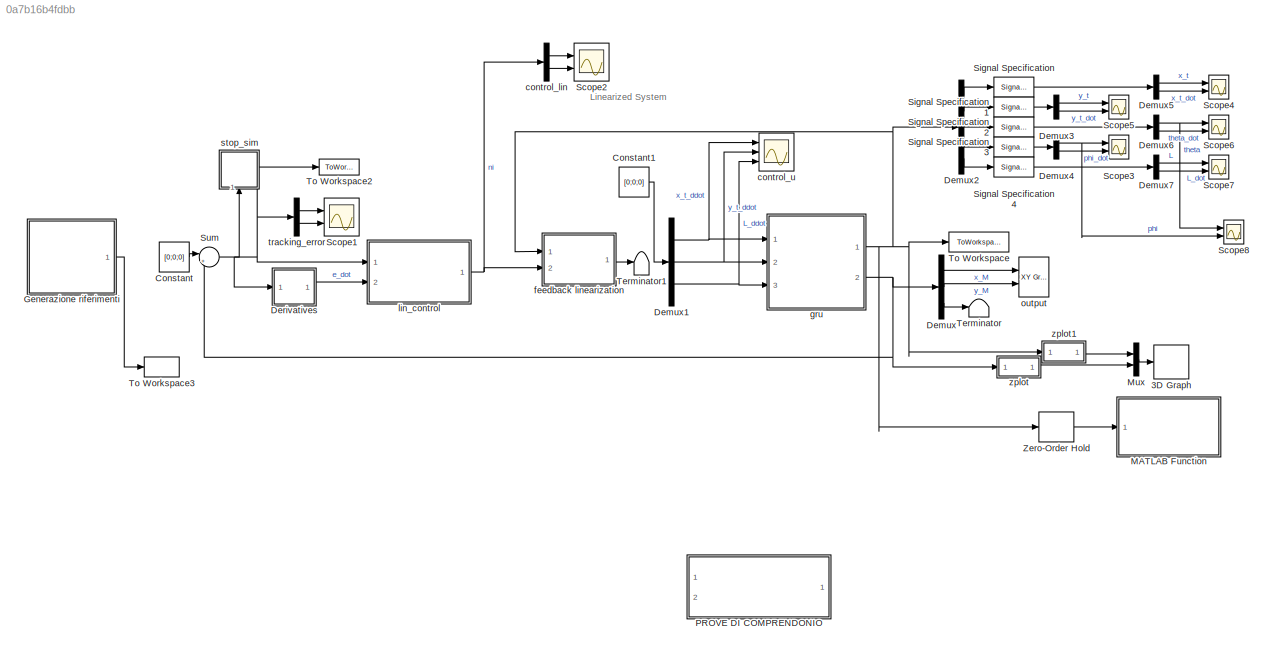
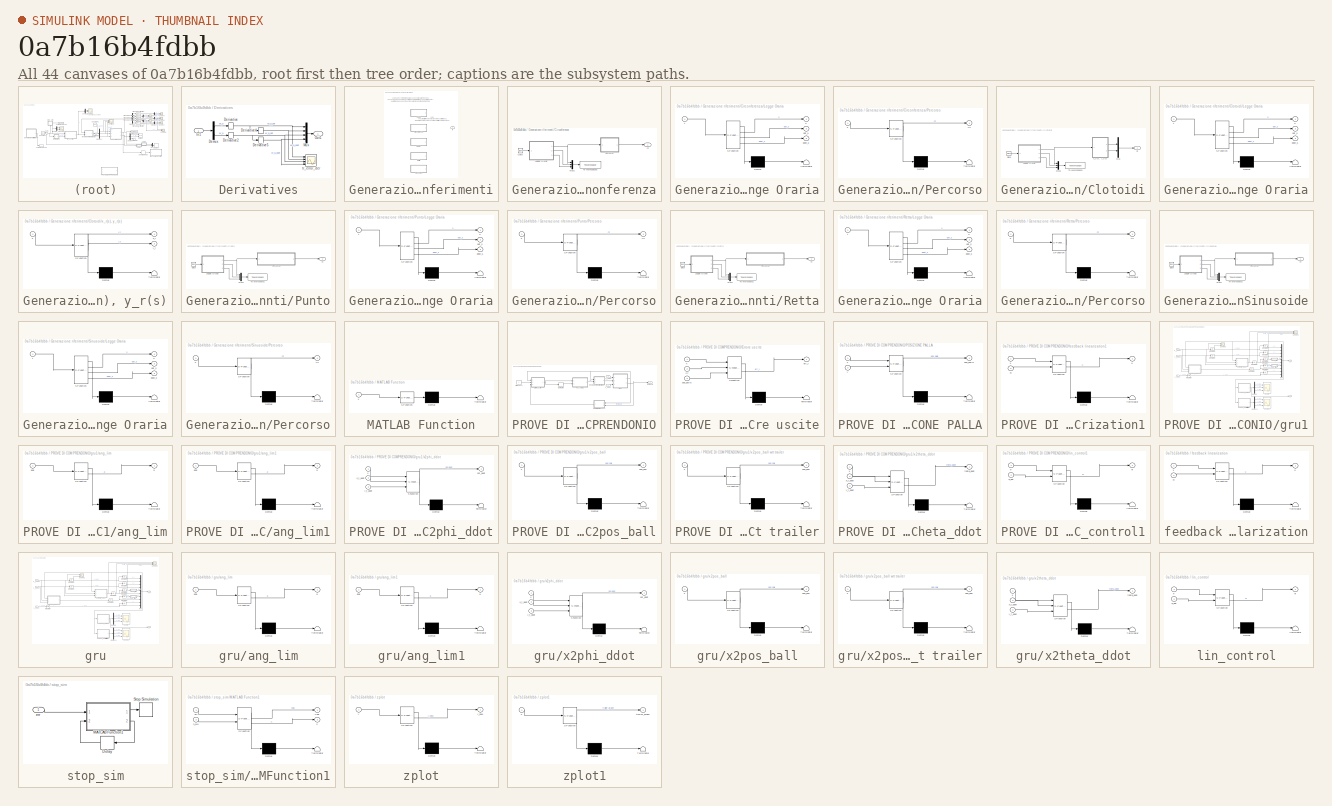
[diagram: thumbnail index - all 44 canvases of the model, root first then tree order]
MODEL slx_0a7b16b4fdbb
KIND model
CONFIG AbsTol = auto
CONFIG EnableMultiTasking = off
CONFIG FixedStep = 0.001
CONFIG InitFcn = init_gru
CONFIG MaxStep = 0.01
CONFIG MinStep = auto
CONFIG RelTol = 1e-3
CONFIG SampleTimeConstraint = Unconstrained
CONFIG Solver = FixedStepAuto
CONFIG SolverName = FixedStepAuto
CONFIG StartTime = 0.0
CONFIG StopFcn = %stop_gru
CONFIG StopTime = Inf
BLOCK [S-Function] 3D Graph
  CopyFcn = if exist('sfun3d','file'), sfun3d([],[],[],'CopyBlock'); end
  DeleteFcn = if exist('sfun3d','file'), sfun3d([],[],[],'DeleteBlock'); end
  EnableBusSupport = off
  FunctionName = sfun3d
  LoadFcn = if exist('sfun3d','file'), sfun3d([],[],[],'LoadBlock'); end
  NameChangeFcn = if exist('sfun3d','file'), sfun3d([],[],[],'NameChange'); end
  Parameters = ax,T,np,cp,gd,ls,mk,mx,hd,tb
  Ports = [1]
  SFcnIsStateOwnerBlock = off
  SFunctionDeploymentMode = off
BLOCK [Constant] Constant
  Value = [0;0;0]
BLOCK [Constant] Constant1
  Value = [0;0;0]
BLOCK [Demux] Demux
  Outputs = 3
  Ports = [1, 3]
BLOCK [Demux] Demux1
  Outputs = 3
  Ports = [1, 3]
BLOCK [Demux] Demux2
  Outputs = 5
  Ports = [1, 5]
BLOCK [Demux] Demux3
  Outputs = 2
  Ports = [1, 2]
BLOCK [Demux] Demux4
  Outputs = 2
  Ports = [1, 2]
BLOCK [Demux] Demux5
  Outputs = 2
  Ports = [1, 2]
BLOCK [Demux] Demux6
  Outputs = 2
  Ports = [1, 2]
BLOCK [Demux] Demux7
  Outputs = 2
  Ports = [1, 2]
BLOCK [SubSystem] Derivatives
  Commented = through
  Ports = [1, 1]
  RequestExecContextInheritance = off
BLOCK [Demux] Derivatives/Demux
  Outputs = 2
  Ports = [1, 2]
BLOCK [Derivative] Derivatives/Derivative
  CoefficientInTFapproximation = 1e10
BLOCK [Derivative] Derivatives/Derivative2
  CoefficientInTFapproximation = 1e10
BLOCK [Derivative] Derivatives/Derivative4
  CoefficientInTFapproximation = 1e10
BLOCK [Derivative] Derivatives/Derivative5
  CoefficientInTFapproximation = 1e10
BLOCK [Inport] Derivatives/In1
BLOCK [Mux] Derivatives/Mux
  DisplayOption = bar
  Ports = [4, 1]
BLOCK [Outport] Derivatives/Out1
BLOCK [Scope] Derivatives/tr_error_der
  Floating = off
  NumInputPorts = 4
  Ports = [4]
  ScopeSpecificationString = Simulink.scopes.TimeScopeBlockCfg('CurrentConfiguration', extmgr.ConfigurationSet(extmgr.Configuration('Core','General UI',true),extmgr.Configuration('Core','Source UI',true),extmgr.Configuration('Sources','WiredSimulink',true,'DataLoggingVariableName','ScopeData1'),extmgr.Configuration('Visuals','Time Domain',true,'SerializedDisplays',{struct('MinYLimReal','-1.00000','MaxYLimReal','1.00000','YLab...<+1587ch>
BLOCK [SubSystem] Generazione riferimenti
  Ports = [0, 1]
  RequestExecContextInheritance = off
  Variant = on
BLOCK [SubSystem] Generazione riferimenti/Circonferenza
  Ports = [0, 1]
  RequestExecContextInheritance = off
  VariantControl = Circonferenza
BLOCK [Clock] Generazione riferimenti/Circonferenza/Clock
BLOCK [SubSystem] Generazione riferimenti/Circonferenza/Legge Oraria
  ErrorFcn = Stateflow.Translate.translate
  PermitHierarchicalResolution = ExplicitOnly
  Ports = [1, 3]
  RequestExecContextInheritance = off
  SFBlockType = MATLAB Function
  TreatAsAtomicUnit = on
BLOCK [Demux] Generazione riferimenti/Circonferenza/Legge Oraria/ Demux 
  Outputs = 1
  Ports = [1, 1]
BLOCK [S-Function] Generazione riferimenti/Circonferenza/Legge Oraria/ SFunction 
  EnableBusSupport = on
  FunctionName = sf_sfun
  Parameters = v_rif
  PortCounts = [1 4]
  Ports = [1, 4]
  SFcnIsStateOwnerBlock = off
  SFunctionDeploymentMode = off
  Tag = Stateflow S-Function 9
BLOCK [Terminator] Generazione riferimenti/Circonferenza/Legge Oraria/ Terminator 
BLOCK [Outport] Generazione riferimenti/Circonferenza/Legge Oraria/ddot_s
  Port = 3
BLOCK [Outport] Generazione riferimenti/Circonferenza/Legge Oraria/dot_s
  Port = 2
BLOCK [Outport] Generazione riferimenti/Circonferenza/Legge Oraria/s
BLOCK [Inport] Generazione riferimenti/Circonferenza/Legge Oraria/t
BLOCK [Mux] Generazione riferimenti/Circonferenza/Mux1
  DisplayOption = bar
  Inputs = 3
  Ports = [3, 1]
BLOCK [SubSystem] Generazione riferimenti/Circonferenza/Percorso
  ErrorFcn = Stateflow.Translate.translate
  PermitHierarchicalResolution = ExplicitOnly
  Ports = [1, 1]
  RequestExecContextInheritance = off
  SFBlockType = MATLAB Function
  TreatAsAtomicUnit = on
BLOCK [Demux] Generazione riferimenti/Circonferenza/Percorso/ Demux 
  Outputs = 1
  Ports = [1, 1]
BLOCK [S-Function] Generazione riferimenti/Circonferenza/Percorso/ SFunction 
  EnableBusSupport = on
  FunctionName = sf_sfun
  Parameters = centro,v_r
  PortCounts = [1 2]
  Ports = [1, 2]
  SFcnIsStateOwnerBlock = off
  SFunctionDeploymentMode = off
  Tag = Stateflow S-Function 10
BLOCK [Terminator] Generazione riferimenti/Circonferenza/Percorso/ Terminator 
BLOCK [Outport] Generazione riferimenti/Circonferenza/Percorso/rif
BLOCK [Inport] Generazione riferimenti/Circonferenza/Percorso/s
BLOCK [ToWorkspace] Generazione riferimenti/Circonferenza/To Workspace3
  FixptAsFi = on
  MaxDataPoints = inf
  Ports = [1]
  SampleTime = -1
  SaveFormat = Timeseries
  VariableName = curv_coord
BLOCK [Outport] Generazione riferimenti/Circonferenza/rif
BLOCK [SubSystem] Generazione riferimenti/Clotoidi
  Ports = [0, 1]
  RequestExecContextInheritance = off
  VariantControl = Clotoidi
BLOCK [Clock] Generazione riferimenti/Clotoidi/Clock
BLOCK [SubSystem] Generazione riferimenti/Clotoidi/Legge Oraria
  ErrorFcn = Stateflow.Translate.translate
  PermitHierarchicalResolution = ExplicitOnly
  Ports = [1, 3]
  RequestExecContextInheritance = off
  SFBlockType = MATLAB Function
  TreatAsAtomicUnit = on
BLOCK [Demux] Generazione riferimenti/Clotoidi/Legge Oraria/ Demux 
  Outputs = 1
  Ports = [1, 1]
BLOCK [S-Function] Generazione riferimenti/Clotoidi/Legge Oraria/ SFunction 
  EnableBusSupport = on
  FunctionName = sf_sfun
  Parameters = v_rif
  PortCounts = [1 4]
  Ports = [1, 4]
  SFcnIsStateOwnerBlock = off
  SFunctionDeploymentMode = off
  Tag = Stateflow S-Function 7
BLOCK [Terminator] Generazione riferimenti/Clotoidi/Legge Oraria/ Terminator 
BLOCK [Outport] Generazione riferimenti/Clotoidi/Legge Oraria/ddot_s
  Port = 3
BLOCK [Outport] Generazione riferimenti/Clotoidi/Legge Oraria/dot_s
  Port = 2
BLOCK [Outport] Generazione riferimenti/Clotoidi/Legge Oraria/s
BLOCK [Inport] Generazione riferimenti/Clotoidi/Legge Oraria/t
BLOCK [Mux] Generazione riferimenti/Clotoidi/Mux
  DisplayOption = bar
  Inputs = 2
  Ports = [2, 1]
BLOCK [Mux] Generazione riferimenti/Clotoidi/Mux1
  DisplayOption = bar
  Inputs = 3
  Ports = [3, 1]
BLOCK [ToWorkspace] Generazione riferimenti/Clotoidi/To Workspace3
  FixptAsFi = on
  MaxDataPoints = inf
  Ports = [1]
  SampleTime = -1
  SaveFormat = Timeseries
  VariableName = curv_coord
BLOCK [Outport] Generazione riferimenti/Clotoidi/rif
BLOCK [SubSystem] Generazione riferimenti/Clotoidi/x_r(s), y_r(s)
  ErrorFcn = Stateflow.Translate.translate
  PermitHierarchicalResolution = ExplicitOnly
  Ports = [1, 2]
  RequestExecContextInheritance = off
  SFBlockType = MATLAB Function
  TreatAsAtomicUnit = on
BLOCK [Demux] Generazione riferimenti/Clotoidi/x_r(s), y_r(s)/ Demux 
  Outputs = 1
  Ports = [1, 1]
BLOCK [S-Function] Generazione riferimenti/Clotoidi/x_r(s), y_r(s)/ SFunction 
  EnableBusSupport = on
  FunctionName = sf_sfun
  Parameters = Lsofar,Lsofarclot,Ltot,indexclot,n_p,theta_rette,xp,yp
  PortCounts = [1 3]
  Ports = [1, 3]
  SFcnIsStateOwnerBlock = off
  SFunctionDeploymentMode = off
  Tag = Stateflow S-Function 13
BLOCK [Terminator] Generazione riferimenti/Clotoidi/x_r(s), y_r(s)/ Terminator 
BLOCK [Inport] Generazione riferimenti/Clotoidi/x_r(s), y_r(s)/s
BLOCK [Outport] Generazione riferimenti/Clotoidi/x_r(s), y_r(s)/x_r
  VectorParamsAs1DForOutWhenUnconnected = off
BLOCK [Outport] Generazione riferimenti/Clotoidi/x_r(s), y_r(s)/y_r
  Port = 2
  VectorParamsAs1DForOutWhenUnconnected = off
BLOCK [SubSystem] Generazione riferimenti/Punto
  Ports = [0, 1]
  RequestExecContextInheritance = off
  VariantControl = Punto
BLOCK [Clock] Generazione riferimenti/Punto/Clock
BLOCK [SubSystem] Generazione riferimenti/Punto/Legge Oraria
  ErrorFcn = Stateflow.Translate.translate
  PermitHierarchicalResolution = ExplicitOnly
  Ports = [1, 3]
  RequestExecContextInheritance = off
  SFBlockType = MATLAB Function
  TreatAsAtomicUnit = on
BLOCK [Demux] Generazione riferimenti/Punto/Legge Oraria/ Demux 
  Outputs = 1
  Ports = [1, 1]
BLOCK [S-Function] Generazione riferimenti/Punto/Legge Oraria/ SFunction 
  EnableBusSupport = on
  FunctionName = sf_sfun
  Parameters = v_rif
  PortCounts = [1 4]
  Ports = [1, 4]
  SFcnIsStateOwnerBlock = off
  SFunctionDeploymentMode = off
  Tag = Stateflow S-Function 3
BLOCK [Terminator] Generazione riferimenti/Punto/Legge Oraria/ Terminator 
BLOCK [Outport] Generazione riferimenti/Punto/Legge Oraria/ddot_s
  Port = 3
BLOCK [Outport] Generazione riferimenti/Punto/Legge Oraria/dot_s
  Port = 2
BLOCK [Outport] Generazione riferimenti/Punto/Legge Oraria/s
BLOCK [Inport] Generazione riferimenti/Punto/Legge Oraria/t
BLOCK [Mux] Generazione riferimenti/Punto/Mux2
  DisplayOption = bar
  Inputs = 3
  Ports = [3, 1]
BLOCK [SubSystem] Generazione riferimenti/Punto/Percorso
  ErrorFcn = Stateflow.Translate.translate
  PermitHierarchicalResolution = ExplicitOnly
  Ports = [1, 1]
  RequestExecContextInheritance = off
  SFBlockType = MATLAB Function
  TreatAsAtomicUnit = on
BLOCK [Demux] Generazione riferimenti/Punto/Percorso/ Demux 
  Outputs = 1
  Ports = [1, 1]
BLOCK [S-Function] Generazione riferimenti/Punto/Percorso/ SFunction 
  EnableBusSupport = on
  FunctionName = sf_sfun
  Parameters = x_M_finale,x_M_iniziale,y_M_finale,y_M_iniziale
  PortCounts = [1 2]
  Ports = [1, 2]
  SFcnIsStateOwnerBlock = off
  SFunctionDeploymentMode = off
  Tag = Stateflow S-Function 6
BLOCK [Terminator] Generazione riferimenti/Punto/Percorso/ Terminator 
BLOCK [Outport] Generazione riferimenti/Punto/Percorso/rif
BLOCK [Inport] Generazione riferimenti/Punto/Percorso/s
BLOCK [ToWorkspace] Generazione riferimenti/Punto/To Workspace1
  FixptAsFi = on
  MaxDataPoints = inf
  Ports = [1]
  SampleTime = -1
  SaveFormat = Timeseries
  VariableName = curv_coord
BLOCK [Outport] Generazione riferimenti/Punto/rif
BLOCK [SubSystem] Generazione riferimenti/Retta
  Ports = [0, 1]
  RequestExecContextInheritance = off
  VariantControl = Retta
BLOCK [Clock] Generazione riferimenti/Retta/Clock
BLOCK [SubSystem] Generazione riferimenti/Retta/Legge Oraria
  ErrorFcn = Stateflow.Translate.translate
  PermitHierarchicalResolution = ExplicitOnly
  Ports = [1, 3]
  RequestExecContextInheritance = off
  SFBlockType = MATLAB Function
  TreatAsAtomicUnit = on
BLOCK [Demux] Generazione riferimenti/Retta/Legge Oraria/ Demux 
  Outputs = 1
  Ports = [1, 1]
BLOCK [S-Function] Generazione riferimenti/Retta/Legge Oraria/ SFunction 
  EnableBusSupport = on
  FunctionName = sf_sfun
  Parameters = v_rif
  PortCounts = [1 4]
  Ports = [1, 4]
  SFcnIsStateOwnerBlock = off
  SFunctionDeploymentMode = off
  Tag = Stateflow S-Function 11
BLOCK [Terminator] Generazione riferimenti/Retta/Legge Oraria/ Terminator 
BLOCK [Outport] Generazione riferimenti/Retta/Legge Oraria/ddot_s
  Port = 3
BLOCK [Outport] Generazione riferimenti/Retta/Legge Oraria/dot_s
  Port = 2
BLOCK [Outport] Generazione riferimenti/Retta/Legge Oraria/s
BLOCK [Inport] Generazione riferimenti/Retta/Legge Oraria/t
BLOCK [Mux] Generazione riferimenti/Retta/Mux2
  DisplayOption = bar
  Inputs = 3
  Ports = [3, 1]
BLOCK [SubSystem] Generazione riferimenti/Retta/Percorso
  ErrorFcn = Stateflow.Translate.translate
  PermitHierarchicalResolution = ExplicitOnly
  Ports = [1, 1]
  RequestExecContextInheritance = off
  SFBlockType = MATLAB Function
  TreatAsAtomicUnit = on
BLOCK [Demux] Generazione riferimenti/Retta/Percorso/ Demux 
  Outputs = 1
  Ports = [1, 1]
BLOCK [S-Function] Generazione riferimenti/Retta/Percorso/ SFunction 
  EnableBusSupport = on
  FunctionName = sf_sfun
  Parameters = dir_retta
  PortCounts = [1 2]
  Ports = [1, 2]
  SFcnIsStateOwnerBlock = off
  SFunctionDeploymentMode = off
  Tag = Stateflow S-Function 12
BLOCK [Terminator] Generazione riferimenti/Retta/Percorso/ Terminator 
BLOCK [Outport] Generazione riferimenti/Retta/Percorso/rif
BLOCK [Inport] Generazione riferimenti/Retta/Percorso/s
BLOCK [ToWorkspace] Generazione riferimenti/Retta/To Workspace1
  FixptAsFi = on
  MaxDataPoints = inf
  Ports = [1]
  SampleTime = -1
  SaveFormat = Timeseries
  VariableName = curv_coord
BLOCK [Outport] Generazione riferimenti/Retta/rif
BLOCK [SubSystem] Generazione riferimenti/Sinusoide
  Ports = [0, 1]
  RequestExecContextInheritance = off
  VariantControl = Sinusoide
BLOCK [Clock] Generazione riferimenti/Sinusoide/Clock
BLOCK [SubSystem] Generazione riferimenti/Sinusoide/Legge Oraria
  ErrorFcn = Stateflow.Translate.translate
  PermitHierarchicalResolution = ExplicitOnly
  Ports = [1, 3]
  RequestExecContextInheritance = off
  SFBlockType = MATLAB Function
  TreatAsAtomicUnit = on
BLOCK [Demux] Generazione riferimenti/Sinusoide/Legge Oraria/ Demux 
  Outputs = 1
  Ports = [1, 1]
BLOCK [S-Function] Generazione riferimenti/Sinusoide/Legge Oraria/ SFunction 
  EnableBusSupport = on
  FunctionName = sf_sfun
  Parameters = v_rif
  PortCounts = [1 4]
  Ports = [1, 4]
  SFcnIsStateOwnerBlock = off
  SFunctionDeploymentMode = off
  Tag = Stateflow S-Function 14
BLOCK [Terminator] Generazione riferimenti/Sinusoide/Legge Oraria/ Terminator 
BLOCK [Outport] Generazione riferimenti/Sinusoide/Legge Oraria/ddot_s
  Port = 3
BLOCK [Outport] Generazione riferimenti/Sinusoide/Legge Oraria/dot_s
  Port = 2
BLOCK [Outport] Generazione riferimenti/Sinusoide/Legge Oraria/s
BLOCK [Inport] Generazione riferimenti/Sinusoide/Legge Oraria/t
BLOCK [Mux] Generazione riferimenti/Sinusoide/Mux2
  DisplayOption = bar
  Inputs = 3
  Ports = [3, 1]
BLOCK [SubSystem] Generazione riferimenti/Sinusoide/Percorso
  ErrorFcn = Stateflow.Translate.translate
  PermitHierarchicalResolution = ExplicitOnly
  Ports = [1, 1]
  RequestExecContextInheritance = off
  SFBlockType = MATLAB Function
  TreatAsAtomicUnit = on
BLOCK [Demux] Generazione riferimenti/Sinusoide/Percorso/ Demux 
  Outputs = 1
  Ports = [1, 1]
BLOCK [S-Function] Generazione riferimenti/Sinusoide/Percorso/ SFunction 
  EnableBusSupport = on
  FunctionName = sf_sfun
  Parameters = dir_retta
  PortCounts = [1 2]
  Ports = [1, 2]
  SFcnIsStateOwnerBlock = off
  SFunctionDeploymentMode = off
  Tag = Stateflow S-Function 15
BLOCK [Terminator] Generazione riferimenti/Sinusoide/Percorso/ Terminator 
BLOCK [Outport] Generazione riferimenti/Sinusoide/Percorso/rif
BLOCK [Inport] Generazione riferimenti/Sinusoide/Percorso/s
BLOCK [ToWorkspace] Generazione riferimenti/Sinusoide/To Workspace1
  FixptAsFi = on
  MaxDataPoints = inf
  Ports = [1]
  SampleTime = -1
  SaveFormat = Timeseries
  VariableName = curv_coord
BLOCK [Outport] Generazione riferimenti/Sinusoide/rif
BLOCK [Outport] Generazione riferimenti/rif
BLOCK [SubSystem] MATLAB Function
  Commented = on
  ErrorFcn = Stateflow.Translate.translate
  PermitHierarchicalResolution = ExplicitOnly
  Ports = [1]
  RequestExecContextInheritance = off
  SFBlockType = MATLAB Function
  TreatAsAtomicUnit = on
BLOCK [Demux] MATLAB Function/ Demux 
  Outputs = 1
  Ports = [1, 1]
BLOCK [S-Function] MATLAB Function/ SFunction 
  EnableBusSupport = on
  FunctionName = sf_sfun
  Parameters = z_t
  PortCounts = [1 1]
  Ports = [1, 1]
  SFcnIsStateOwnerBlock = off
  SFunctionDeploymentMode = off
  Tag = Stateflow S-Function 22
BLOCK [Terminator] MATLAB Function/ Terminator 
BLOCK [Inport] MATLAB Function/x
BLOCK [Mux] Mux
  DisplayOption = bar
  Inputs = 2
  Ports = [2, 1]
BLOCK [SubSystem] PROVE DI COMPRENDONIO
  Commented = on
  Ports = [2, 1]
  RequestExecContextInheritance = off
BLOCK [Derivative] PROVE DI COMPRENDONIO/Derivative
BLOCK [SubSystem] PROVE DI COMPRENDONIO/Errore uscite
  ErrorFcn = Stateflow.Translate.translate
  PermitHierarchicalResolution = ExplicitOnly
  Ports = [3, 1]
  RequestExecContextInheritance = off
  SFBlockType = MATLAB Function
  TreatAsAtomicUnit = on
BLOCK [Demux] PROVE DI COMPRENDONIO/Errore uscite/ Demux 
  Outputs = 1
  Ports = [1, 1]
BLOCK [S-Function] PROVE DI COMPRENDONIO/Errore uscite/ SFunction 
  EnableBusSupport = off
  FunctionName = sf_sfun
  PortCounts = [3 2]
  Ports = [3, 2]
  SFcnIsStateOwnerBlock = off
  SFunctionDeploymentMode = off
  Tag = Stateflow S-Function 32
BLOCK [Terminator] PROVE DI COMPRENDONIO/Errore uscite/ Terminator 
BLOCK [Outport] PROVE DI COMPRENDONIO/Errore uscite/err_y
BLOCK [Inport] PROVE DI COMPRENDONIO/Errore uscite/pos_palla
  Port = 3
BLOCK [Inport] PROVE DI COMPRENDONIO/Errore uscite/rif
  Port = 2
BLOCK [Inport] PROVE DI COMPRENDONIO/Errore uscite/x
BLOCK [Inport] PROVE DI COMPRENDONIO/L_ddot
  Port = 2
BLOCK [SubSystem] PROVE DI COMPRENDONIO/POSIZIONE PALLA
  ErrorFcn = Stateflow.Translate.translate
  PermitHierarchicalResolution = ExplicitOnly
  Ports = [2, 1]
  RequestExecContextInheritance = off
  SFBlockType = MATLAB Function
  TreatAsAtomicUnit = on
BLOCK [Demux] PROVE DI COMPRENDONIO/POSIZIONE PALLA/ Demux 
  Outputs = 1
  Ports = [1, 1]
BLOCK [S-Function] PROVE DI COMPRENDONIO/POSIZIONE PALLA/ SFunction 
  EnableBusSupport = off
  FunctionName = sf_sfun
  PortCounts = [2 2]
  Ports = [2, 2]
  SFcnIsStateOwnerBlock = off
  SFunctionDeploymentMode = off
  Tag = Stateflow S-Function 31
BLOCK [Terminator] PROVE DI COMPRENDONIO/POSIZIONE PALLA/ Terminator 
BLOCK [Outport] PROVE DI COMPRENDONIO/POSIZIONE PALLA/pos_palla
BLOCK [Inport] PROVE DI COMPRENDONIO/POSIZIONE PALLA/x
BLOCK [Inport] PROVE DI COMPRENDONIO/POSIZIONE PALLA/y
  Port = 2
BLOCK [Constant] PROVE DI COMPRENDONIO/RIF PALLA
BLOCK [SubSystem] PROVE DI COMPRENDONIO/feedback linearization1
  ErrorFcn = Stateflow.Translate.translate
  PermitHierarchicalResolution = ExplicitOnly
  Ports = [2, 1]
  RequestExecContextInheritance = off
  SFBlockType = MATLAB Function
  TreatAsAtomicUnit = on
BLOCK [Demux] PROVE DI COMPRENDONIO/feedback linearization1/ Demux 
  Outputs = 1
  Ports = [1, 1]
BLOCK [S-Function] PROVE DI COMPRENDONIO/feedback linearization1/ SFunction 
  EnableBusSupport = on
  FunctionName = sf_sfun
  PortCounts = [2 2]
  Ports = [2, 2]
  SFcnIsStateOwnerBlock = off
  SFunctionDeploymentMode = off
  Tag = Stateflow S-Function 29
BLOCK [Terminator] PROVE DI COMPRENDONIO/feedback linearization1/ Terminator 
BLOCK [Inport] PROVE DI COMPRENDONIO/feedback linearization1/ni
  Port = 2
BLOCK [Outport] PROVE DI COMPRENDONIO/feedback linearization1/u
BLOCK [Inport] PROVE DI COMPRENDONIO/feedback linearization1/x
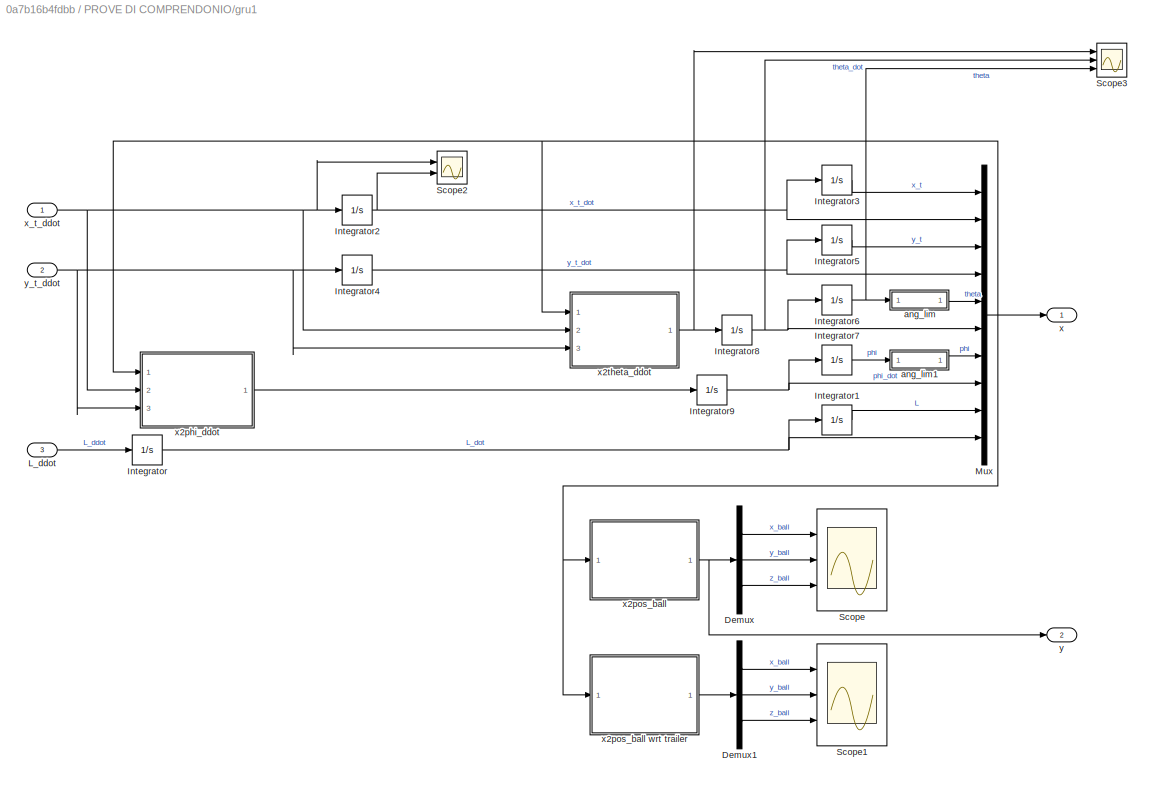
BLOCK [SubSystem] PROVE DI COMPRENDONIO/gru1
  Ports = [3, 2]
  RequestExecContextInheritance = off
BLOCK [Demux] PROVE DI COMPRENDONIO/gru1/Demux
  Outputs = 3
  Ports = [1, 3]
BLOCK [Demux] PROVE DI COMPRENDONIO/gru1/Demux1
  Outputs = 3
  Ports = [1, 3]
BLOCK [Integrator] PROVE DI COMPRENDONIO/gru1/Integrator
  InitialCondition = L_dot_iniziale
  Ports = [1, 1]
BLOCK [Integrator] PROVE DI COMPRENDONIO/gru1/Integrator1
  InitialCondition = L_iniziale
  Ports = [1, 1]
BLOCK [Integrator] PROVE DI COMPRENDONIO/gru1/Integrator2
  InitialCondition = x_t_dot_iniziale
  LowerSaturationLimit = -1e3
  Ports = [1, 1]
  UpperSaturationLimit = 1e3
BLOCK [Integrator] PROVE DI COMPRENDONIO/gru1/Integrator3
  InitialCondition = x_t_iniziale
  Ports = [1, 1]
BLOCK [Integrator] PROVE DI COMPRENDONIO/gru1/Integrator4
  InitialCondition = y_t_dot_iniziale
  Ports = [1, 1]
BLOCK [Integrator] PROVE DI COMPRENDONIO/gru1/Integrator5
  InitialCondition = y_t_iniziale
  Ports = [1, 1]
BLOCK [Integrator] PROVE DI COMPRENDONIO/gru1/Integrator6
  InitialCondition = theta_iniziale
  Ports = [1, 1]
BLOCK [Integrator] PROVE DI COMPRENDONIO/gru1/Integrator7
  InitialCondition = phi_iniziale
  Ports = [1, 1]
BLOCK [Integrator] PROVE DI COMPRENDONIO/gru1/Integrator8
  InitialCondition = theta_dot_iniziale
  Ports = [1, 1]
BLOCK [Integrator] PROVE DI COMPRENDONIO/gru1/Integrator9
  InitialCondition = phi_dot_iniziale
  Ports = [1, 1]
BLOCK [Inport] PROVE DI COMPRENDONIO/gru1/L_ddot
  Port = 3
BLOCK [Mux] PROVE DI COMPRENDONIO/gru1/Mux
  DisplayOption = bar
  Inputs = 10
  Ports = [10, 1]
BLOCK [Scope] PROVE DI COMPRENDONIO/gru1/Scope
  Floating = off
  NumInputPorts = 3
  Ports = [3]
  ScopeSpecificationString = Simulink.scopes.TimeScopeBlockCfg('CurrentConfiguration', extmgr.ConfigurationSet(extmgr.Configuration('Core','General UI',true),extmgr.Configuration('Core','Source UI',true),extmgr.Configuration('Sources','WiredSimulink',true,'DataLoggingVariableName','ScopeData1'),extmgr.Configuration('Visuals','Time Domain',true,'SerializedDisplays',{struct('MinYLimReal','-15.92596','MaxYLimReal','17.66034','YL...<+1487ch>
BLOCK [Scope] PROVE DI COMPRENDONIO/gru1/Scope1
  Floating = off
  NumInputPorts = 3
  Ports = [3]
  ScopeSpecificationString = Simulink.scopes.TimeScopeBlockCfg('CurrentConfiguration', extmgr.ConfigurationSet(extmgr.Configuration('Core','General UI',true),extmgr.Configuration('Core','Source UI',true),extmgr.Configuration('Sources','WiredSimulink',true,'DataLoggingVariableName','ScopeData8'),extmgr.Configuration('Visuals','Time Domain',true,'SerializedDisplays',{struct('MinYLimReal','-15.92596','MaxYLimReal','17.66034','YL...<+1487ch>
BLOCK [Scope] PROVE DI COMPRENDONIO/gru1/Scope2
  Floating = off
  NumInputPorts = 2
  Ports = [2]
  ScopeSpecificationString = Simulink.scopes.TimeScopeBlockCfg('CurrentConfiguration', extmgr.ConfigurationSet(extmgr.Configuration('Core','General UI',true),extmgr.Configuration('Core','Source UI',true),extmgr.Configuration('Sources','WiredSimulink',true,'DataLoggingVariableName','ScopeData1'),extmgr.Configuration('Visuals','Time Domain',true,'SerializedDisplays',{struct('MinYLimReal','-1.00000','MaxYLimReal','1.00000','YLab...<+1413ch>
BLOCK [Scope] PROVE DI COMPRENDONIO/gru1/Scope3
  Floating = off
  NumInputPorts = 3
  Ports = [3]
  ScopeSpecificationString = Simulink.scopes.TimeScopeBlockCfg('CurrentConfiguration', extmgr.ConfigurationSet(extmgr.Configuration('Core','General UI',true),extmgr.Configuration('Core','Source UI',true),extmgr.Configuration('Sources','WiredSimulink',true,'DataLoggingVariableName','ScopeData2'),extmgr.Configuration('Visuals','Time Domain',true,'SerializedDisplays',{struct('MinYLimReal','-0.03634','MaxYLimReal','0.0434','YLabe...<+1428ch>
BLOCK [SubSystem] PROVE DI COMPRENDONIO/gru1/ang_lim
  ErrorFcn = Stateflow.Translate.translate
  PermitHierarchicalResolution = ExplicitOnly
  Ports = [1, 1]
  RequestExecContextInheritance = off
  SFBlockType = MATLAB Function
  TreatAsAtomicUnit = on
BLOCK [Demux] PROVE DI COMPRENDONIO/gru1/ang_lim/ Demux 
  Outputs = 1
  Ports = [1, 1]
BLOCK [S-Function] PROVE DI COMPRENDONIO/gru1/ang_lim/ SFunction 
  EnableBusSupport = on
  FunctionName = sf_sfun
  PortCounts = [1 2]
  Ports = [1, 2]
  SFcnIsStateOwnerBlock = off
  SFunctionDeploymentMode = off
  Tag = Stateflow S-Function 23
BLOCK [Terminator] PROVE DI COMPRENDONIO/gru1/ang_lim/ Terminator 
BLOCK [Outport] PROVE DI COMPRENDONIO/gru1/ang_lim/a
BLOCK [Inport] PROVE DI COMPRENDONIO/gru1/ang_lim/ang
BLOCK [SubSystem] PROVE DI COMPRENDONIO/gru1/ang_lim1
  ErrorFcn = Stateflow.Translate.translate
  PermitHierarchicalResolution = ExplicitOnly
  Ports = [1, 1]
  RequestExecContextInheritance = off
  SFBlockType = MATLAB Function
  TreatAsAtomicUnit = on
BLOCK [Demux] PROVE DI COMPRENDONIO/gru1/ang_lim1/ Demux 
  Outputs = 1
  Ports = [1, 1]
BLOCK [S-Function] PROVE DI COMPRENDONIO/gru1/ang_lim1/ SFunction 
  EnableBusSupport = on
  FunctionName = sf_sfun
  PortCounts = [1 2]
  Ports = [1, 2]
  SFcnIsStateOwnerBlock = off
  SFunctionDeploymentMode = off
  Tag = Stateflow S-Function 24
BLOCK [Terminator] PROVE DI COMPRENDONIO/gru1/ang_lim1/ Terminator 
BLOCK [Outport] PROVE DI COMPRENDONIO/gru1/ang_lim1/a
BLOCK [Inport] PROVE DI COMPRENDONIO/gru1/ang_lim1/ang
BLOCK [Outport] PROVE DI COMPRENDONIO/gru1/x
BLOCK [SubSystem] PROVE DI COMPRENDONIO/gru1/x2phi_ddot
  ErrorFcn = Stateflow.Translate.translate
  PermitHierarchicalResolution = ExplicitOnly
  Ports = [3, 1]
  RequestExecContextInheritance = off
  SFBlockType = MATLAB Function
  TreatAsAtomicUnit = on
BLOCK [Demux] PROVE DI COMPRENDONIO/gru1/x2phi_ddot/ Demux 
  Outputs = 1
  Ports = [1, 1]
BLOCK [S-Function] PROVE DI COMPRENDONIO/gru1/x2phi_ddot/ SFunction 
  EnableBusSupport = on
  FunctionName = sf_sfun
  PortCounts = [3 2]
  Ports = [3, 2]
  SFcnIsStateOwnerBlock = off
  SFunctionDeploymentMode = off
  Tag = Stateflow S-Function 25
BLOCK [Terminator] PROVE DI COMPRENDONIO/gru1/x2phi_ddot/ Terminator 
BLOCK [Outport] PROVE DI COMPRENDONIO/gru1/x2phi_ddot/phi_ddot
BLOCK [Inport] PROVE DI COMPRENDONIO/gru1/x2phi_ddot/x
BLOCK [Inport] PROVE DI COMPRENDONIO/gru1/x2phi_ddot/x_t_ddot
  Port = 2
BLOCK [Inport] PROVE DI COMPRENDONIO/gru1/x2phi_ddot/y_t_ddot
  Port = 3
BLOCK [SubSystem] PROVE DI COMPRENDONIO/gru1/x2pos_ball
  ErrorFcn = Stateflow.Translate.translate
  PermitHierarchicalResolution = ExplicitOnly
  Ports = [1, 1]
  RequestExecContextInheritance = off
  SFBlockType = MATLAB Function
  TreatAsAtomicUnit = on
BLOCK [SubSystem] PROVE DI COMPRENDONIO/gru1/x2pos_ball wrt trailer
  ErrorFcn = Stateflow.Translate.translate
  PermitHierarchicalResolution = ExplicitOnly
  Ports = [1, 1]
  RequestExecContextInheritance = off
  SFBlockType = MATLAB Function
  TreatAsAtomicUnit = on
BLOCK [Demux] PROVE DI COMPRENDONIO/gru1/x2pos_ball wrt trailer/ Demux 
  Outputs = 1
  Ports = [1, 1]
BLOCK [S-Function] PROVE DI COMPRENDONIO/gru1/x2pos_ball wrt trailer/ SFunction 
  EnableBusSupport = on
  FunctionName = sf_sfun
  PortCounts = [1 2]
  Ports = [1, 2]
  SFcnIsStateOwnerBlock = off
  SFunctionDeploymentMode = off
  Tag = Stateflow S-Function 27
BLOCK [Terminator] PROVE DI COMPRENDONIO/gru1/x2pos_ball wrt trailer/ Terminator 
BLOCK [Outport] PROVE DI COMPRENDONIO/gru1/x2pos_ball wrt trailer/pos_ball
BLOCK [Inport] PROVE DI COMPRENDONIO/gru1/x2pos_ball wrt trailer/x
BLOCK [Demux] PROVE DI COMPRENDONIO/gru1/x2pos_ball/ Demux 
  Outputs = 1
  Ports = [1, 1]
BLOCK [S-Function] PROVE DI COMPRENDONIO/gru1/x2pos_ball/ SFunction 
  EnableBusSupport = on
  FunctionName = sf_sfun
  Parameters = z_t
  PortCounts = [1 2]
  Ports = [1, 2]
  SFcnIsStateOwnerBlock = off
  SFunctionDeploymentMode = off
  Tag = Stateflow S-Function 26
BLOCK [Terminator] PROVE DI COMPRENDONIO/gru1/x2pos_ball/ Terminator 
BLOCK [Outport] PROVE DI COMPRENDONIO/gru1/x2pos_ball/pos_ball
BLOCK [Inport] PROVE DI COMPRENDONIO/gru1/x2pos_ball/x
BLOCK [SubSystem] PROVE DI COMPRENDONIO/gru1/x2theta_ddot
  ErrorFcn = Stateflow.Translate.translate
  PermitHierarchicalResolution = ExplicitOnly
  Ports = [3, 1]
  RequestExecContextInheritance = off
  SFBlockType = MATLAB Function
  TreatAsAtomicUnit = on
BLOCK [Demux] PROVE DI COMPRENDONIO/gru1/x2theta_ddot/ Demux 
  Outputs = 1
  Ports = [1, 1]
BLOCK [S-Function] PROVE DI COMPRENDONIO/gru1/x2theta_ddot/ SFunction 
  EnableBusSupport = on
  FunctionName = sf_sfun
  Parameters = g
  PortCounts = [3 2]
  Ports = [3, 2]
  SFcnIsStateOwnerBlock = off
  SFunctionDeploymentMode = off
  Tag = Stateflow S-Function 28
BLOCK [Terminator] PROVE DI COMPRENDONIO/gru1/x2theta_ddot/ Terminator 
BLOCK [Outport] PROVE DI COMPRENDONIO/gru1/x2theta_ddot/theta_ddot
BLOCK [Inport] PROVE DI COMPRENDONIO/gru1/x2theta_ddot/x
BLOCK [Inport] PROVE DI COMPRENDONIO/gru1/x2theta_ddot/x_t_ddot
  Port = 2
BLOCK [Inport] PROVE DI COMPRENDONIO/gru1/x2theta_ddot/y_t_ddot
  Port = 3
BLOCK [Inport] PROVE DI COMPRENDONIO/gru1/x_t_ddot
BLOCK [Outport] PROVE DI COMPRENDONIO/gru1/y
  Port = 2
BLOCK [Inport] PROVE DI COMPRENDONIO/gru1/y_t_ddot
  Port = 2
BLOCK [SubSystem] PROVE DI COMPRENDONIO/lin_control1
  ErrorFcn = Stateflow.Translate.translate
  PermitHierarchicalResolution = ExplicitOnly
  Ports = [2, 1]
  RequestExecContextInheritance = off
  SFBlockType = MATLAB Function
  TreatAsAtomicUnit = on
BLOCK [Demux] PROVE DI COMPRENDONIO/lin_control1/ Demux 
  Outputs = 1
  Ports = [1, 1]
BLOCK [S-Function] PROVE DI COMPRENDONIO/lin_control1/ SFunction 
  EnableBusSupport = on
  FunctionName = sf_sfun
  Parameters = K1,K2,K3
  PortCounts = [2 2]
  Ports = [2, 2]
  SFcnIsStateOwnerBlock = off
  SFunctionDeploymentMode = off
  Tag = Stateflow S-Function 30
BLOCK [Terminator] PROVE DI COMPRENDONIO/lin_control1/ Terminator 
BLOCK [Inport] PROVE DI COMPRENDONIO/lin_control1/e
BLOCK [Inport] PROVE DI COMPRENDONIO/lin_control1/e_dot
  Port = 2
BLOCK [Outport] PROVE DI COMPRENDONIO/lin_control1/ni
BLOCK [Outport] PROVE DI COMPRENDONIO/theta phi L
BLOCK [Inport] PROVE DI COMPRENDONIO/x_t_ddot
BLOCK [Scope] Scope1
  Commented = on
  Floating = off
  NumInputPorts = 2
  Ports = [2]
  ScopeSpecificationString = Simulink.scopes.TimeScopeBlockCfg('CurrentConfiguration', extmgr.ConfigurationSet(extmgr.Configuration('Core','General UI',true),extmgr.Configuration('Core','Source UI',true),extmgr.Configuration('Sources','WiredSimulink',true,'DataLoggingVariableName','ScopeData1'),extmgr.Configuration('Visuals','Time Domain',true,'SerializedDisplays',{struct('MinYLimReal','-1.46599','MaxYLimReal','-0.94822','YLa...<+1492ch>
BLOCK [Scope] Scope2
  Floating = off
  NumInputPorts = 2
  Ports = [2]
  ScopeSpecificationString = Simulink.scopes.TimeScopeBlockCfg('CurrentConfiguration', extmgr.ConfigurationSet(extmgr.Configuration('Core','General UI',true),extmgr.Configuration('Core','Source UI',true),extmgr.Configuration('Sources','WiredSimulink',true,'DataLoggingVariableName','ScopeData3'),extmgr.Configuration('Visuals','Time Domain',true,'SerializedDisplays',{struct('MinYLimReal','-28128942865715496458282282631640135295...<+1896ch>
BLOCK [Scope] Scope3
  Floating = off
  NumInputPorts = 2
  Ports = [2]
  ScopeSpecificationString = Simulink.scopes.TimeScopeBlockCfg('CurrentConfiguration', extmgr.ConfigurationSet(extmgr.Configuration('Core','General UI',true),extmgr.Configuration('Core','Source UI',true),extmgr.Configuration('Sources','WiredSimulink',true,'DataLoggingVariableName','ScopeData2'),extmgr.Configuration('Visuals','Time Domain',true,'SerializedDisplays',{struct('MinYLimReal','0.68807','MaxYLimReal','5.26865','YLabe...<+1414ch>
BLOCK [Scope] Scope4
  Floating = off
  NumInputPorts = 2
  Ports = [2]
  ScopeSpecificationString = Simulink.scopes.TimeScopeBlockCfg('CurrentConfiguration', extmgr.ConfigurationSet(extmgr.Configuration('Core','General UI',true),extmgr.Configuration('Core','Source UI',true),extmgr.Configuration('Sources','WiredSimulink',true,'DataLoggingVariableName','ScopeData3'),extmgr.Configuration('Visuals','Time Domain',true,'SerializedDisplays',{struct('MinYLimReal','-1.00000','MaxYLimReal','1.00000','YLab...<+1446ch>
BLOCK [Scope] Scope5
  Floating = off
  NumInputPorts = 2
  Ports = [2]
  ScopeSpecificationString = Simulink.scopes.TimeScopeBlockCfg('CurrentConfiguration', extmgr.ConfigurationSet(extmgr.Configuration('Core','General UI',true),extmgr.Configuration('Core','Source UI',true),extmgr.Configuration('Sources','WiredSimulink',true,'DataLoggingVariableName','ScopeData5'),extmgr.Configuration('Visuals','Time Domain',true,'SerializedDisplays',{struct('MinYLimReal','-1.00000','MaxYLimReal','1.00000','YLab...<+1397ch>
BLOCK [Scope] Scope6
  Floating = off
  NumInputPorts = 2
  Ports = [2]
  ScopeSpecificationString = Simulink.scopes.TimeScopeBlockCfg('CurrentConfiguration', extmgr.ConfigurationSet(extmgr.Configuration('Core','General UI',true),extmgr.Configuration('Core','Source UI',true),extmgr.Configuration('Sources','WiredSimulink',true,'DataLoggingVariableName','ScopeData4'),extmgr.Configuration('Visuals','Time Domain',true,'SerializedDisplays',{struct('MinYLimReal','-1.07616','MaxYLimReal','1.07717','YLab...<+1425ch>
BLOCK [Scope] Scope7
  Floating = off
  NumInputPorts = 2
  Ports = [2]
  ScopeSpecificationString = Simulink.scopes.TimeScopeBlockCfg('CurrentConfiguration', extmgr.ConfigurationSet(extmgr.Configuration('Core','General UI',true),extmgr.Configuration('Core','Source UI',true),extmgr.Configuration('Sources','WiredSimulink',true,'DataLoggingVariableName','ScopeData6'),extmgr.Configuration('Visuals','Time Domain',true,'SerializedDisplays',{struct('MinYLimReal','-0.25','MaxYLimReal','2.25','YLabelReal...<+1424ch>
BLOCK [Scope] Scope8
  Floating = off
  NumInputPorts = 2
  Ports = [2]
  ScopeSpecificationString = Simulink.scopes.TimeScopeBlockCfg('CurrentConfiguration', extmgr.ConfigurationSet(extmgr.Configuration('Core','General UI',true),extmgr.Configuration('Core','Source UI',true),extmgr.Configuration('Sources','WiredSimulink',true,'DataLoggingVariableName','ScopeData3'),extmgr.Configuration('Visuals','Time Domain',true,'SerializedDisplays',{struct('MinYLimReal','-2.1594','MaxYLimReal','19.44796','YLab...<+1793ch>
BLOCK [SignalSpecification] Signal Specification
  Dimensions = [2,1]
BLOCK [SignalSpecification] Signal Specification1
  Dimensions = [2,1]
BLOCK [SignalSpecification] Signal Specification2
  Dimensions = [2,1]
BLOCK [SignalSpecification] Signal Specification3
  Dimensions = [2,1]
BLOCK [SignalSpecification] Signal Specification4
  Dimensions = [2,1]
BLOCK [Sum] Sum
  Inputs = |+-
  Ports = [2, 1]
BLOCK [Terminator] Terminator
BLOCK [Terminator] Terminator1
BLOCK [ToWorkspace] To Workspace
  FixptAsFi = on
  MaxDataPoints = inf
  Ports = [1]
  SampleTime = -1
  SaveFormat = Timeseries
  VariableName = state_ts
BLOCK [ToWorkspace] To Workspace2
  FixptAsFi = on
  MaxDataPoints = inf
  Ports = [1]
  SampleTime = -1
  SaveFormat = Timeseries
  VariableName = err
BLOCK [ToWorkspace] To Workspace3
  FixptAsFi = on
  MaxDataPoints = inf
  Ports = [1]
  SampleTime = -1
  SaveFormat = Timeseries
  VariableName = rif
BLOCK [ZeroOrderHold] Zero-Order Hold
  Commented = on
  SampleTime = 1/10
BLOCK [Demux] control_lin
  Outputs = 2
  Ports = [1, 2]
BLOCK [Scope] control_u
  Floating = off
  NumInputPorts = 3
  Ports = [3]
  ScopeSpecificationString = Simulink.scopes.TimeScopeBlockCfg('CurrentConfiguration', extmgr.ConfigurationSet(extmgr.Configuration('Core','General UI',true),extmgr.Configuration('Core','Source UI',true),extmgr.Configuration('Sources','WiredSimulink',true,'DataLoggingVariableName','ScopeData2'),extmgr.Configuration('Visuals','Time Domain',true,'SerializedDisplays',{struct('MinYLimReal','-7.33022','MaxYLimReal','16.8719','YLab...<+1610ch>
BLOCK [SubSystem] feedback linearization
  ErrorFcn = Stateflow.Translate.translate
  PermitHierarchicalResolution = ExplicitOnly
  Ports = [2, 1]
  RequestExecContextInheritance = off
  SFBlockType = MATLAB Function
  TreatAsAtomicUnit = on
BLOCK [Demux] feedback linearization/ Demux 
  Outputs = 1
  Ports = [1, 1]
BLOCK [S-Function] feedback linearization/ SFunction 
  EnableBusSupport = on
  FunctionName = sf_sfun
  PortCounts = [2 2]
  Ports = [2, 2]
  SFcnIsStateOwnerBlock = off
  SFunctionDeploymentMode = off
  Tag = Stateflow S-Function 2
BLOCK [Terminator] feedback linearization/ Terminator 
BLOCK [Inport] feedback linearization/ni
  Port = 2
BLOCK [Outport] feedback linearization/u
BLOCK [Inport] feedback linearization/x
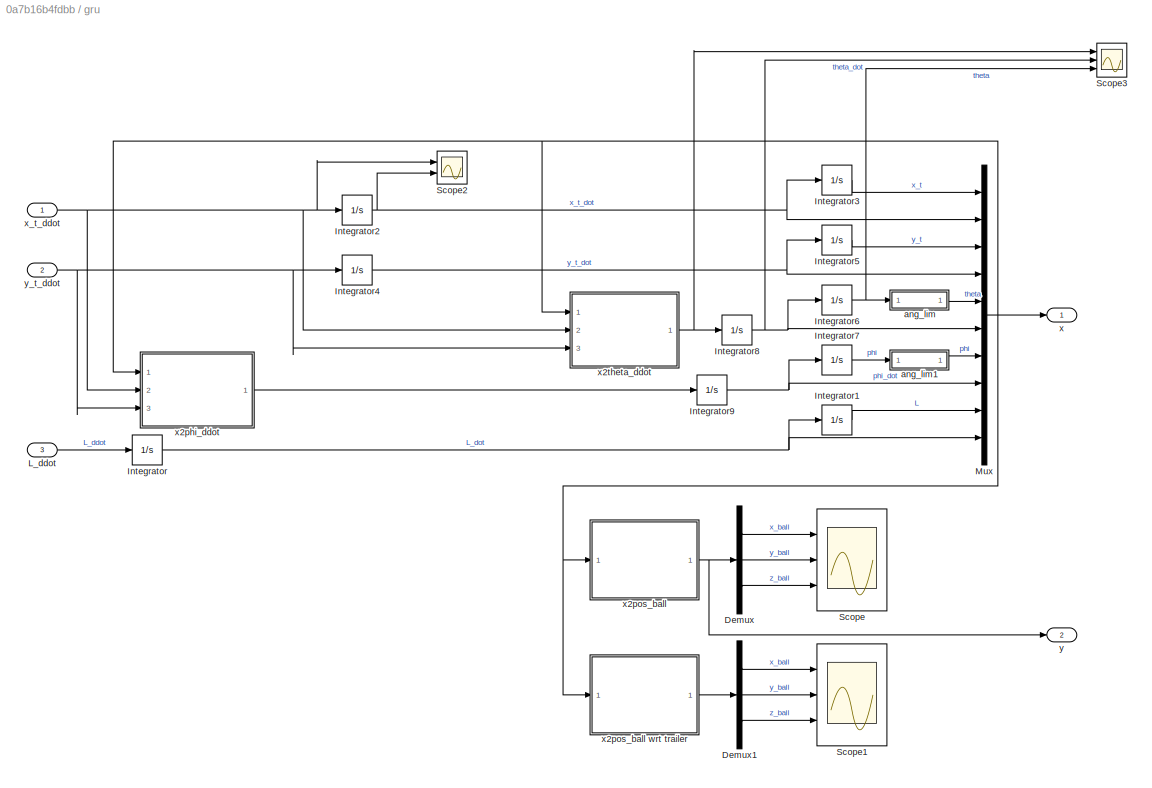
BLOCK [SubSystem] gru
  Ports = [3, 2]
  RequestExecContextInheritance = off
BLOCK [Demux] gru/Demux
  Outputs = 3
  Ports = [1, 3]
BLOCK [Demux] gru/Demux1
  Outputs = 3
  Ports = [1, 3]
BLOCK [Integrator] gru/Integrator
  InitialCondition = L_dot_iniziale
  Ports = [1, 1]
BLOCK [Integrator] gru/Integrator1
  InitialCondition = L_iniziale
  Ports = [1, 1]
BLOCK [Integrator] gru/Integrator2
  InitialCondition = x_t_dot_iniziale
  LowerSaturationLimit = -1e3
  Ports = [1, 1]
  UpperSaturationLimit = 1e3
BLOCK [Integrator] gru/Integrator3
  InitialCondition = x_t_iniziale
  Ports = [1, 1]
BLOCK [Integrator] gru/Integrator4
  InitialCondition = y_t_dot_iniziale
  Ports = [1, 1]
BLOCK [Integrator] gru/Integrator5
  InitialCondition = y_t_iniziale
  Ports = [1, 1]
BLOCK [Integrator] gru/Integrator6
  InitialCondition = theta_iniziale
  Ports = [1, 1]
BLOCK [Integrator] gru/Integrator7
  InitialCondition = phi_iniziale
  Ports = [1, 1]
BLOCK [Integrator] gru/Integrator8
  InitialCondition = theta_dot_iniziale
  Ports = [1, 1]
BLOCK [Integrator] gru/Integrator9
  InitialCondition = phi_dot_iniziale
  Ports = [1, 1]
BLOCK [Inport] gru/L_ddot
  Port = 3
BLOCK [Mux] gru/Mux
  DisplayOption = bar
  Inputs = 10
  Ports = [10, 1]
BLOCK [Scope] gru/Scope
  Floating = off
  NumInputPorts = 3
  Ports = [3]
  ScopeSpecificationString = Simulink.scopes.TimeScopeBlockCfg('CurrentConfiguration', extmgr.ConfigurationSet(extmgr.Configuration('Core','General UI',true),extmgr.Configuration('Core','Source UI',true),extmgr.Configuration('Sources','WiredSimulink',true,'DataLoggingVariableName','ScopeData1'),extmgr.Configuration('Visuals','Time Domain',true,'SerializedDisplays',{struct('MinYLimReal','-15.92596','MaxYLimReal','17.66034','YL...<+1487ch>
BLOCK [Scope] gru/Scope1
  Floating = off
  NumInputPorts = 3
  Ports = [3]
  ScopeSpecificationString = Simulink.scopes.TimeScopeBlockCfg('CurrentConfiguration', extmgr.ConfigurationSet(extmgr.Configuration('Core','General UI',true),extmgr.Configuration('Core','Source UI',true),extmgr.Configuration('Sources','WiredSimulink',true,'DataLoggingVariableName','ScopeData8'),extmgr.Configuration('Visuals','Time Domain',true,'SerializedDisplays',{struct('MinYLimReal','-15.92596','MaxYLimReal','17.66034','YL...<+1487ch>
BLOCK [Scope] gru/Scope2
  Floating = off
  NumInputPorts = 2
  Ports = [2]
  ScopeSpecificationString = Simulink.scopes.TimeScopeBlockCfg('CurrentConfiguration', extmgr.ConfigurationSet(extmgr.Configuration('Core','General UI',true),extmgr.Configuration('Core','Source UI',true),extmgr.Configuration('Sources','WiredSimulink',true,'DataLoggingVariableName','ScopeData1'),extmgr.Configuration('Visuals','Time Domain',true,'SerializedDisplays',{struct('MinYLimReal','-1.00000','MaxYLimReal','1.00000','YLab...<+1413ch>
BLOCK [Scope] gru/Scope3
  Floating = off
  NumInputPorts = 3
  Ports = [3]
  ScopeSpecificationString = Simulink.scopes.TimeScopeBlockCfg('CurrentConfiguration', extmgr.ConfigurationSet(extmgr.Configuration('Core','General UI',true),extmgr.Configuration('Core','Source UI',true),extmgr.Configuration('Sources','WiredSimulink',true,'DataLoggingVariableName','ScopeData2'),extmgr.Configuration('Visuals','Time Domain',true,'SerializedDisplays',{struct('MinYLimReal','-0.03634','MaxYLimReal','0.0434','YLabe...<+1428ch>
BLOCK [SubSystem] gru/ang_lim
  ErrorFcn = Stateflow.Translate.translate
  PermitHierarchicalResolution = ExplicitOnly
  Ports = [1, 1]
  RequestExecContextInheritance = off
  SFBlockType = MATLAB Function
  TreatAsAtomicUnit = on
BLOCK [Demux] gru/ang_lim/ Demux 
  Outputs = 1
  Ports = [1, 1]
BLOCK [S-Function] gru/ang_lim/ SFunction 
  EnableBusSupport = on
  FunctionName = sf_sfun
  PortCounts = [1 2]
  Ports = [1, 2]
  SFcnIsStateOwnerBlock = off
  SFunctionDeploymentMode = off
  Tag = Stateflow S-Function 18
BLOCK [Terminator] gru/ang_lim/ Terminator 
BLOCK [Outport] gru/ang_lim/a
BLOCK [Inport] gru/ang_lim/ang
BLOCK [SubSystem] gru/ang_lim1
  ErrorFcn = Stateflow.Translate.translate
  PermitHierarchicalResolution = ExplicitOnly
  Ports = [1, 1]
  RequestExecContextInheritance = off
  SFBlockType = MATLAB Function
  TreatAsAtomicUnit = on
BLOCK [Demux] gru/ang_lim1/ Demux 
  Outputs = 1
  Ports = [1, 1]
BLOCK [S-Function] gru/ang_lim1/ SFunction 
  EnableBusSupport = on
  FunctionName = sf_sfun
  PortCounts = [1 2]
  Ports = [1, 2]
  SFcnIsStateOwnerBlock = off
  SFunctionDeploymentMode = off
  Tag = Stateflow S-Function 19
BLOCK [Terminator] gru/ang_lim1/ Terminator 
BLOCK [Outport] gru/ang_lim1/a
BLOCK [Inport] gru/ang_lim1/ang
BLOCK [Outport] gru/x
BLOCK [SubSystem] gru/x2phi_ddot
  ErrorFcn = Stateflow.Translate.translate
  PermitHierarchicalResolution = ExplicitOnly
  Ports = [3, 1]
  RequestExecContextInheritance = off
  SFBlockType = MATLAB Function
  TreatAsAtomicUnit = on
BLOCK [Demux] gru/x2phi_ddot/ Demux 
  Outputs = 1
  Ports = [1, 1]
BLOCK [S-Function] gru/x2phi_ddot/ SFunction 
  EnableBusSupport = on
  FunctionName = sf_sfun
  PortCounts = [3 2]
  Ports = [3, 2]
  SFcnIsStateOwnerBlock = off
  SFunctionDeploymentMode = off
  Tag = Stateflow S-Function 8
BLOCK [Terminator] gru/x2phi_ddot/ Terminator 
BLOCK [Outport] gru/x2phi_ddot/phi_ddot
BLOCK [Inport] gru/x2phi_ddot/x
BLOCK [Inport] gru/x2phi_ddot/x_t_ddot
  Port = 2
BLOCK [Inport] gru/x2phi_ddot/y_t_ddot
  Port = 3
BLOCK [SubSystem] gru/x2pos_ball
  ErrorFcn = Stateflow.Translate.translate
  PermitHierarchicalResolution = ExplicitOnly
  Ports = [1, 1]
  RequestExecContextInheritance = off
  SFBlockType = MATLAB Function
  TreatAsAtomicUnit = on
BLOCK [SubSystem] gru/x2pos_ball wrt trailer
  ErrorFcn = Stateflow.Translate.translate
  PermitHierarchicalResolution = ExplicitOnly
  Ports = [1, 1]
  RequestExecContextInheritance = off
  SFBlockType = MATLAB Function
  TreatAsAtomicUnit = on
BLOCK [Demux] gru/x2pos_ball wrt trailer/ Demux 
  Outputs = 1
  Ports = [1, 1]
BLOCK [S-Function] gru/x2pos_ball wrt trailer/ SFunction 
  EnableBusSupport = on
  FunctionName = sf_sfun
  PortCounts = [1 2]
  Ports = [1, 2]
  SFcnIsStateOwnerBlock = off
  SFunctionDeploymentMode = off
  Tag = Stateflow S-Function 17
BLOCK [Terminator] gru/x2pos_ball wrt trailer/ Terminator 
BLOCK [Outport] gru/x2pos_ball wrt trailer/pos_ball
BLOCK [Inport] gru/x2pos_ball wrt trailer/x
BLOCK [Demux] gru/x2pos_ball/ Demux 
  Outputs = 1
  Ports = [1, 1]
BLOCK [S-Function] gru/x2pos_ball/ SFunction 
  EnableBusSupport = on
  FunctionName = sf_sfun
  Parameters = z_t
  PortCounts = [1 2]
  Ports = [1, 2]
  SFcnIsStateOwnerBlock = off
  SFunctionDeploymentMode = off
  Tag = Stateflow S-Function 16
BLOCK [Terminator] gru/x2pos_ball/ Terminator 
BLOCK [Outport] gru/x2pos_ball/pos_ball
BLOCK [Inport] gru/x2pos_ball/x
BLOCK [SubSystem] gru/x2theta_ddot
  ErrorFcn = Stateflow.Translate.translate
  PermitHierarchicalResolution = ExplicitOnly
  Ports = [3, 1]
  RequestExecContextInheritance = off
  SFBlockType = MATLAB Function
  TreatAsAtomicUnit = on
BLOCK [Demux] gru/x2theta_ddot/ Demux 
  Outputs = 1
  Ports = [1, 1]
BLOCK [S-Function] gru/x2theta_ddot/ SFunction 
  EnableBusSupport = on
  FunctionName = sf_sfun
  Parameters = g
  PortCounts = [3 2]
  Ports = [3, 2]
  SFcnIsStateOwnerBlock = off
  SFunctionDeploymentMode = off
  Tag = Stateflow S-Function 4
BLOCK [Terminator] gru/x2theta_ddot/ Terminator 
BLOCK [Outport] gru/x2theta_ddot/theta_ddot
BLOCK [Inport] gru/x2theta_ddot/x
BLOCK [Inport] gru/x2theta_ddot/x_t_ddot
  Port = 2
BLOCK [Inport] gru/x2theta_ddot/y_t_ddot
  Port = 3
BLOCK [Inport] gru/x_t_ddot
BLOCK [Outport] gru/y
  Port = 2
BLOCK [Inport] gru/y_t_ddot
  Port = 2
BLOCK [SubSystem] lin_control
  ErrorFcn = Stateflow.Translate.translate
  PermitHierarchicalResolution = ExplicitOnly
  Ports = [2, 1]
  RequestExecContextInheritance = off
  SFBlockType = MATLAB Function
  TreatAsAtomicUnit = on
BLOCK [Demux] lin_control/ Demux 
  Outputs = 1
  Ports = [1, 1]
BLOCK [S-Function] lin_control/ SFunction 
  EnableBusSupport = on
  FunctionName = sf_sfun
  Parameters = K1,K2,K3
  PortCounts = [2 2]
  Ports = [2, 2]
  SFcnIsStateOwnerBlock = off
  SFunctionDeploymentMode = off
  Tag = Stateflow S-Function 1
BLOCK [Terminator] lin_control/ Terminator 
BLOCK [Inport] lin_control/e
BLOCK [Inport] lin_control/e_dot
  Port = 2
BLOCK [Outport] lin_control/ni
BLOCK [Reference] output  REF=simulink/Sinks/XY Graph
  Ports = [2]
  SourceBlock = simulink/Sinks/XY Graph
  SourceProductBaseCode = SL
  SourceType = XY scope.
BLOCK [SubSystem] stop_sim
  Commented = on
  NameLocation = top
  Ports = [1]
  RequestExecContextInheritance = off
BLOCK [Delay] stop_sim/Delay
  DelayLength = 1
  InputPortMap = u0
  Ports = [1, 1]
BLOCK [SubSystem] stop_sim/MATLAB Function1
  ErrorFcn = Stateflow.Translate.translate
  PermitHierarchicalResolution = ExplicitOnly
  Ports = [2, 2]
  RequestExecContextInheritance = off
  SFBlockType = MATLAB Function
  TreatAsAtomicUnit = on
BLOCK [Demux] stop_sim/MATLAB Function1/ Demux 
  Outputs = 1
  Ports = [1, 1]
BLOCK [S-Function] stop_sim/MATLAB Function1/ SFunction 
  EnableBusSupport = on
  FunctionName = sf_sfun
  Parameters = threshold
  PortCounts = [2 3]
  Ports = [2, 3]
  SFcnIsStateOwnerBlock = off
  SFunctionDeploymentMode = off
  Tag = Stateflow S-Function 5
BLOCK [Terminator] stop_sim/MATLAB Function1/ Terminator 
BLOCK [Inport] stop_sim/MATLAB Function1/err
BLOCK [Outport] stop_sim/MATLAB Function1/flag
BLOCK [Outport] stop_sim/MATLAB Function1/n
  Port = 2
BLOCK [Inport] stop_sim/MATLAB Function1/n_old
  Port = 2
BLOCK [Stop] stop_sim/Stop Simulation
BLOCK [Inport] stop_sim/err
BLOCK [Demux] tracking_error
  Commented = on
  Outputs = 2
  Ports = [1, 2]
BLOCK [SubSystem] zplot
  ErrorFcn = Stateflow.Translate.translate
  PermitHierarchicalResolution = ExplicitOnly
  Ports = [1, 1]
  RequestExecContextInheritance = off
  SFBlockType = MATLAB Function
  TreatAsAtomicUnit = on
BLOCK [Demux] zplot/ Demux 
  Outputs = 1
  Ports = [1, 1]
BLOCK [S-Function] zplot/ SFunction 
  EnableBusSupport = on
  FunctionName = sf_sfun
  PortCounts = [1 2]
  Ports = [1, 2]
  SFcnIsStateOwnerBlock = off
  SFunctionDeploymentMode = off
  Tag = Stateflow S-Function 20
BLOCK [Terminator] zplot/ Terminator 
BLOCK [Inport] zplot/y
BLOCK [Outport] zplot/y_new
BLOCK [SubSystem] zplot1
  ErrorFcn = Stateflow.Translate.translate
  PermitHierarchicalResolution = ExplicitOnly
  Ports = [1, 1]
  RequestExecContextInheritance = off
  SFBlockType = MATLAB Function
  TreatAsAtomicUnit = on
BLOCK [Demux] zplot1/ Demux 
  Outputs = 1
  Ports = [1, 1]
BLOCK [S-Function] zplot1/ SFunction 
  EnableBusSupport = on
  FunctionName = sf_sfun
  Parameters = z_t
  PortCounts = [1 2]
  Ports = [1, 2]
  SFcnIsStateOwnerBlock = off
  SFunctionDeploymentMode = off
  Tag = Stateflow S-Function 21
BLOCK [Terminator] zplot1/ Terminator 
BLOCK [Outport] zplot1/trailer_graph
BLOCK [Inport] zplot1/x
ANNOTATION (root): Linearized System
ANNOTATION Generazione riferimenti: 1) Add Subsystem or Model blocks as valid variant choices. 2) You cannot connect blocks at this level. At simulation, connectivity is automatically determined, based on the active variant and port name matching.
ANNOTATION Generazione riferimenti: nota: velocità di riferimento nella circonferenza limitata a 0.1 raggio impostato come 10 volte la vel di rif (ho visto funziona)
LINE Constant1:1 -> Demux1:1
LINE Constant:1 -> Sum:1
NET Demux1:1 -> control_u:1, gru:1
NET Demux1:2 -> control_u:2, gru:2
NET Demux1:3 -> control_u:3, gru:3
LINE Demux2:1 -> Signal Specification:1
LINE Demux2:2 -> Signal Specification1:1
LINE Demux2:3 -> Signal Specification2:1
LINE Demux2:4 -> Signal Specification3:1
LINE Demux2:5 -> Signal Specification4:1
LINE Demux3:1 -> Scope5:1
LINE Demux3:2 -> Scope5:2
NET Demux4:1 -> Scope3:1, Scope8:2
LINE Demux4:2 -> Scope3:2
LINE Demux5:1 -> Scope4:1
LINE Demux5:2 -> Scope4:2
NET Demux6:1 -> Scope6:1, Scope8:1
LINE Demux6:2 -> Scope6:2
LINE Demux7:1 -> Scope7:1
LINE Demux7:2 -> Scope7:2
LINE Demux:1 -> output:1
LINE Demux:2 -> output:2
LINE Demux:3 -> Terminator:1
LINE Derivatives/Demux:1 -> Derivatives/Derivative:1
LINE Derivatives/Demux:2 -> Derivatives/Derivative2:1
NET Derivatives/Derivative2:1 -> Derivatives/Derivative5:1, Derivatives/Mux:3, Derivatives/tr_error_der:3
NET Derivatives/Derivative4:1 -> Derivatives/Mux:2, Derivatives/tr_error_der:2
NET Derivatives/Derivative5:1 -> Derivatives/Mux:4, Derivatives/tr_error_der:4
NET Derivatives/Derivative:1 -> Derivatives/Derivative4:1, Derivatives/Mux:1, Derivatives/tr_error_der:1
LINE Derivatives/In1:1 -> Derivatives/Demux:1
LINE Derivatives/Mux:1 -> Derivatives/Out1:1
LINE Derivatives:1 -> lin_control:2
LINE Generazione riferimenti/Circonferenza/Clock:1 -> Generazione riferimenti/Circonferenza/Legge Oraria:1
NET Generazione riferimenti/Circonferenza/Legge Oraria:1 -> Generazione riferimenti/Circonferenza/Mux1:1, Generazione riferimenti/Circonferenza/Percorso:1
LINE Generazione riferimenti/Circonferenza/Legge Oraria:2 -> Generazione riferimenti/Circonferenza/Mux1:2
LINE Generazione riferimenti/Circonferenza/Legge Oraria:3 -> Generazione riferimenti/Circonferenza/Mux1:3
LINE Generazione riferimenti/Circonferenza/Mux1:1 -> Generazione riferimenti/Circonferenza/To Workspace3:1
LINE Generazione riferimenti/Circonferenza/Percorso:1 -> Generazione riferimenti/Circonferenza/rif:1
LINE Generazione riferimenti/Clotoidi/Clock:1 -> Generazione riferimenti/Clotoidi/Legge Oraria:1
NET Generazione riferimenti/Clotoidi/Legge Oraria:1 -> Generazione riferimenti/Clotoidi/Mux1:1, Generazione riferimenti/Clotoidi/x_r(s), y_r(s):1
LINE Generazione riferimenti/Clotoidi/Legge Oraria:2 -> Generazione riferimenti/Clotoidi/Mux1:2
LINE Generazione riferimenti/Clotoidi/Legge Oraria:3 -> Generazione riferimenti/Clotoidi/Mux1:3
LINE Generazione riferimenti/Clotoidi/Mux1:1 -> Generazione riferimenti/Clotoidi/To Workspace3:1
LINE Generazione riferimenti/Clotoidi/Mux:1 -> Generazione riferimenti/Clotoidi/rif:1
LINE Generazione riferimenti/Clotoidi/x_r(s), y_r(s):1 -> Generazione riferimenti/Clotoidi/Mux:1
LINE Generazione riferimenti/Clotoidi/x_r(s), y_r(s):2 -> Generazione riferimenti/Clotoidi/Mux:2
LINE Generazione riferimenti/Punto/Clock:1 -> Generazione riferimenti/Punto/Legge Oraria:1
NET Generazione riferimenti/Punto/Legge Oraria:1 -> Generazione riferimenti/Punto/Mux2:1, Generazione riferimenti/Punto/Percorso:1
LINE Generazione riferimenti/Punto/Legge Oraria:2 -> Generazione riferimenti/Punto/Mux2:2
LINE Generazione riferimenti/Punto/Legge Oraria:3 -> Generazione riferimenti/Punto/Mux2:3
LINE Generazione riferimenti/Punto/Mux2:1 -> Generazione riferimenti/Punto/To Workspace1:1
LINE Generazione riferimenti/Punto/Percorso:1 -> Generazione riferimenti/Punto/rif:1
LINE Generazione riferimenti/Retta/Clock:1 -> Generazione riferimenti/Retta/Legge Oraria:1
NET Generazione riferimenti/Retta/Legge Oraria:1 -> Generazione riferimenti/Retta/Mux2:1, Generazione riferimenti/Retta/Percorso:1
LINE Generazione riferimenti/Retta/Legge Oraria:2 -> Generazione riferimenti/Retta/Mux2:2
LINE Generazione riferimenti/Retta/Legge Oraria:3 -> Generazione riferimenti/Retta/Mux2:3
LINE Generazione riferimenti/Retta/Mux2:1 -> Generazione riferimenti/Retta/To Workspace1:1
LINE Generazione riferimenti/Retta/Percorso:1 -> Generazione riferimenti/Retta/rif:1
LINE Generazione riferimenti/Sinusoide/Clock:1 -> Generazione riferimenti/Sinusoide/Legge Oraria:1
NET Generazione riferimenti/Sinusoide/Legge Oraria:1 -> Generazione riferimenti/Sinusoide/Mux2:1, Generazione riferimenti/Sinusoide/Percorso:1
LINE Generazione riferimenti/Sinusoide/Legge Oraria:2 -> Generazione riferimenti/Sinusoide/Mux2:2
LINE Generazione riferimenti/Sinusoide/Legge Oraria:3 -> Generazione riferimenti/Sinusoide/Mux2:3
LINE Generazione riferimenti/Sinusoide/Mux2:1 -> Generazione riferimenti/Sinusoide/To Workspace1:1
LINE Generazione riferimenti/Sinusoide/Percorso:1 -> Generazione riferimenti/Sinusoide/rif:1
LINE Generazione riferimenti:1 -> To Workspace3:1
LINE Mux:1 -> 3D Graph:1
LINE PROVE DI COMPRENDONIO/Derivative:1 -> PROVE DI COMPRENDONIO/lin_control1:2
NET PROVE DI COMPRENDONIO/Errore uscite:1 -> PROVE DI COMPRENDONIO/Derivative:1, PROVE DI COMPRENDONIO/lin_control1:1
LINE PROVE DI COMPRENDONIO/L_ddot:1 -> PROVE DI COMPRENDONIO/gru1:3
LINE PROVE DI COMPRENDONIO/POSIZIONE PALLA:1 -> PROVE DI COMPRENDONIO/Errore uscite:3
LINE PROVE DI COMPRENDONIO/RIF PALLA:1 -> PROVE DI COMPRENDONIO/Errore uscite:2
LINE PROVE DI COMPRENDONIO/feedback linearization1:1 -> PROVE DI COMPRENDONIO/gru1:2
LINE PROVE DI COMPRENDONIO/gru1/Demux1:1 -> PROVE DI COMPRENDONIO/gru1/Scope1:1
LINE PROVE DI COMPRENDONIO/gru1/Demux1:2 -> PROVE DI COMPRENDONIO/gru1/Scope1:2
LINE PROVE DI COMPRENDONIO/gru1/Demux1:3 -> PROVE DI COMPRENDONIO/gru1/Scope1:3
LINE PROVE DI COMPRENDONIO/gru1/Demux:1 -> PROVE DI COMPRENDONIO/gru1/Scope:1
LINE PROVE DI COMPRENDONIO/gru1/Demux:2 -> PROVE DI COMPRENDONIO/gru1/Scope:2
LINE PROVE DI COMPRENDONIO/gru1/Demux:3 -> PROVE DI COMPRENDONIO/gru1/Scope:3
LINE PROVE DI COMPRENDONIO/gru1/Integrator1:1 -> PROVE DI COMPRENDONIO/gru1/Mux:9
NET PROVE DI COMPRENDONIO/gru1/Integrator2:1 -> PROVE DI COMPRENDONIO/gru1/Integrator3:1, PROVE DI COMPRENDONIO/gru1/Mux:2, PROVE DI COMPRENDONIO/gru1/Scope2:2
LINE PROVE DI COMPRENDONIO/gru1/Integrator3:1 -> PROVE DI COMPRENDONIO/gru1/Mux:1
NET PROVE DI COMPRENDONIO/gru1/Integrator4:1 -> PROVE DI COMPRENDONIO/gru1/Integrator5:1, PROVE DI COMPRENDONIO/gru1/Mux:4
LINE PROVE DI COMPRENDONIO/gru1/Integrator5:1 -> PROVE DI COMPRENDONIO/gru1/Mux:3
NET PROVE DI COMPRENDONIO/gru1/Integrator6:1 -> PROVE DI COMPRENDONIO/gru1/Scope3:3, PROVE DI COMPRENDONIO/gru1/ang_lim:1
LINE PROVE DI COMPRENDONIO/gru1/Integrator7:1 -> PROVE DI COMPRENDONIO/gru1/ang_lim1:1
NET PROVE DI COMPRENDONIO/gru1/Integrator8:1 -> PROVE DI COMPRENDONIO/gru1/Integrator6:1, PROVE DI COMPRENDONIO/gru1/Mux:6, PROVE DI COMPRENDONIO/gru1/Scope3:2
NET PROVE DI COMPRENDONIO/gru1/Integrator9:1 -> PROVE DI COMPRENDONIO/gru1/Integrator7:1, PROVE DI COMPRENDONIO/gru1/Mux:8
NET PROVE DI COMPRENDONIO/gru1/Integrator:1 -> PROVE DI COMPRENDONIO/gru1/Integrator1:1, PROVE DI COMPRENDONIO/gru1/Mux:10
LINE PROVE DI COMPRENDONIO/gru1/L_ddot:1 -> PROVE DI COMPRENDONIO/gru1/Integrator:1
NET PROVE DI COMPRENDONIO/gru1/Mux:1 -> PROVE DI COMPRENDONIO/gru1/x2phi_ddot:1, PROVE DI COMPRENDONIO/gru1/x2pos_ball wrt trailer:1, PROVE DI COMPRENDONIO/gru1/x2pos_ball:1, PROVE DI COMPRENDONIO/gru1/x2theta_ddot:1, PROVE DI COMPRENDONIO/gru1/x:1
LINE PROVE DI COMPRENDONIO/gru1/ang_lim1:1 -> PROVE DI COMPRENDONIO/gru1/Mux:7
LINE PROVE DI COMPRENDONIO/gru1/ang_lim:1 -> PROVE DI COMPRENDONIO/gru1/Mux:5
LINE PROVE DI COMPRENDONIO/gru1/x2phi_ddot:1 -> PROVE DI COMPRENDONIO/gru1/Integrator9:1
LINE PROVE DI COMPRENDONIO/gru1/x2pos_ball wrt trailer:1 -> PROVE DI COMPRENDONIO/gru1/Demux1:1
NET PROVE DI COMPRENDONIO/gru1/x2pos_ball:1 -> PROVE DI COMPRENDONIO/gru1/Demux:1, PROVE DI COMPRENDONIO/gru1/y:1
NET PROVE DI COMPRENDONIO/gru1/x2theta_ddot:1 -> PROVE DI COMPRENDONIO/gru1/Integrator8:1, PROVE DI COMPRENDONIO/gru1/Scope3:1
NET PROVE DI COMPRENDONIO/gru1/x_t_ddot:1 -> PROVE DI COMPRENDONIO/gru1/Integrator2:1, PROVE DI COMPRENDONIO/gru1/Scope2:1, PROVE DI COMPRENDONIO/gru1/x2phi_ddot:2, PROVE DI COMPRENDONIO/gru1/x2theta_ddot:2
NET PROVE DI COMPRENDONIO/gru1/y_t_ddot:1 -> PROVE DI COMPRENDONIO/gru1/Integrator4:1, PROVE DI COMPRENDONIO/gru1/x2phi_ddot:3, PROVE DI COMPRENDONIO/gru1/x2theta_ddot:3
NET PROVE DI COMPRENDONIO/gru1:1 -> PROVE DI COMPRENDONIO/Errore uscite:1, PROVE DI COMPRENDONIO/POSIZIONE PALLA:1, PROVE DI COMPRENDONIO/feedback linearization1:1
NET PROVE DI COMPRENDONIO/gru1:2 -> PROVE DI COMPRENDONIO/POSIZIONE PALLA:2, PROVE DI COMPRENDONIO/theta phi L:1
LINE PROVE DI COMPRENDONIO/lin_control1:1 -> PROVE DI COMPRENDONIO/feedback linearization1:2
LINE PROVE DI COMPRENDONIO/x_t_ddot:1 -> PROVE DI COMPRENDONIO/gru1:1
LINE Signal Specification1:1 -> Demux3:1
LINE Signal Specification2:1 -> Demux6:1
LINE Signal Specification3:1 -> Demux4:1
LINE Signal Specification4:1 -> Demux7:1
LINE Signal Specification:1 -> Demux5:1
NET Sum:1 -> Derivatives:1, To Workspace2:1, lin_control:1, stop_sim:1, tracking_error:1
LINE Zero-Order Hold:1 -> MATLAB Function:1
LINE control_lin:1 -> Scope2:1
LINE control_lin:2 -> Scope2:2
LINE feedback linearization:1 -> Terminator1:1
LINE gru/Demux1:1 -> gru/Scope1:1
LINE gru/Demux1:2 -> gru/Scope1:2
LINE gru/Demux1:3 -> gru/Scope1:3
LINE gru/Demux:1 -> gru/Scope:1
LINE gru/Demux:2 -> gru/Scope:2
LINE gru/Demux:3 -> gru/Scope:3
LINE gru/Integrator1:1 -> gru/Mux:9
NET gru/Integrator2:1 -> gru/Integrator3:1, gru/Mux:2, gru/Scope2:2
LINE gru/Integrator3:1 -> gru/Mux:1
NET gru/Integrator4:1 -> gru/Integrator5:1, gru/Mux:4
LINE gru/Integrator5:1 -> gru/Mux:3
NET gru/Integrator6:1 -> gru/Scope3:3, gru/ang_lim:1
LINE gru/Integrator7:1 -> gru/ang_lim1:1
NET gru/Integrator8:1 -> gru/Integrator6:1, gru/Mux:6, gru/Scope3:2
NET gru/Integrator9:1 -> gru/Integrator7:1, gru/Mux:8
NET gru/Integrator:1 -> gru/Integrator1:1, gru/Mux:10
LINE gru/L_ddot:1 -> gru/Integrator:1
NET gru/Mux:1 -> gru/x2phi_ddot:1, gru/x2pos_ball wrt trailer:1, gru/x2pos_ball:1, gru/x2theta_ddot:1, gru/x:1
LINE gru/ang_lim1:1 -> gru/Mux:7
LINE gru/ang_lim:1 -> gru/Mux:5
LINE gru/x2phi_ddot:1 -> gru/Integrator9:1
LINE gru/x2pos_ball wrt trailer:1 -> gru/Demux1:1
NET gru/x2pos_ball:1 -> gru/Demux:1, gru/y:1
NET gru/x2theta_ddot:1 -> gru/Integrator8:1, gru/Scope3:1
NET gru/x_t_ddot:1 -> gru/Integrator2:1, gru/Scope2:1, gru/x2phi_ddot:2, gru/x2theta_ddot:2
NET gru/y_t_ddot:1 -> gru/Integrator4:1, gru/x2phi_ddot:3, gru/x2theta_ddot:3
NET gru:1 -> Demux2:1, To Workspace:1, Zero-Order Hold:1, feedback linearization:1, zplot1:1
NET gru:2 -> Demux:1, Sum:2, zplot:1
NET lin_control:1 -> control_lin:1, feedback linearization:2
LINE stop_sim/Delay:1 -> stop_sim/MATLAB Function1:2
LINE stop_sim/MATLAB Function1:1 -> stop_sim/Stop Simulation:1
LINE stop_sim/MATLAB Function1:2 -> stop_sim/Delay:1
LINE stop_sim/err:1 -> stop_sim/MATLAB Function1:1
LINE tracking_error:1 -> Scope1:1
LINE tracking_error:2 -> Scope1:2
LINE zplot1:1 -> Mux:1
LINE zplot:1 -> Mux:2
note: NET lines group one-source signal fan-out (src -> all destinations, sorted); 1:1 wires keep LINE
CHART Generazione riferimenti/Clotoidi/Legge Oraria states=1 transitions=1
  STATE_LABEL 'eML_blk_kernel()'
  STATE_LABEL 'SCRIPT:\nfunction [s, dot_s, ddot_s]  = legge_oraria(t, v_rif)\n%#codegen PEPO\n\ns = v_rif*t;\ndot_s = v_rif;\nddot_s = 0.0;\n\n\nend'
CHART gru/x2phi_ddot states=1 transitions=1
  STATE_LABEL 'eML_blk_kernel()'
  STATE_LABEL 'SCRIPT:\nfunction phi_ddot = fcn(x, x_t_ddot, y_t_ddot)\n\t\n\ttheta\t\t= x(5);\n\ttheta_dot\t= x(6);\n\tphi\t\t\t= x(7);\n\tphi_dot\t\t= x(8);\n\tL\t\t\t= x(9);\n\tL_dot\t\t= x(10);\n\t\nphi_ddot = -2*(L_dot/L)*phi_dot-2*phi_dot*theta_dot*cot(theta) + (-cos(phi)/(sin(theta)*L))*x_t_ddot + (sin(phi)/(sin(theta)*L))*y_t_ddot;\n'
CHART Generazione riferimenti/Circonferenza/Legge Oraria states=1 transitions=1
  STATE_LABEL 'eML_blk_kernel()'
  STATE_LABEL 'SCRIPT:\nfunction [s, dot_s, ddot_s]  = legge_oraria(t, v_rif)\n%#codegen PEPO\n\ns = v_rif*t;\ndot_s = v_rif;\nddot_s = 0.0;\n\n\nend'
CHART Generazione riferimenti/Circonferenza/Percorso states=1 transitions=1
  STATE_LABEL 'eML_blk_kernel()'
  STATE_LABEL 'SCRIPT:\nfunction rif = percorso(s, centro, v_r)\n\nr = 10*v_r;  % 1\ntheta_circ = s/r;\n\nif theta_circ >=  3*2*pi % dopotre giri ti fermi\n\ttheta_circ = 3*2*pi;\nend\n\nrif = centro + r*[cos(theta_circ);sin(theta_circ)];\t\t% circonferenza\n\nend\n'
CHART Generazione riferimenti/Retta/Legge Oraria states=1 transitions=1
  STATE_LABEL 'eML_blk_kernel()'
  STATE_LABEL 'SCRIPT:\nfunction [s, dot_s, ddot_s]  = legge_oraria(t, v_rif)\n%#codegen PEPO\n\ns = v_rif*t;\ndot_s = v_rif;\nddot_s = 0.0;\n\n\nend'
CHART Generazione riferimenti/Retta/Percorso states=1 transitions=1
  STATE_LABEL 'eML_blk_kernel()'
  STATE_LABEL 'SCRIPT:\nfunction rif  = retta(s, dir_retta)\n\nrif = [0;0] + s * dir_retta;\n\n\nend'
CHART Generazione riferimenti/Clotoidi/x_r(s), y_r(s) states=1 transitions=1
  STATE_LABEL 'eML_blk_kernel()'
  STATE_LABEL "SCRIPT:\nfunction [x_r,y_r] = percorso(s, indexclot, theta_rette, yp, xp, ...\n\t\t\t\t\t\t\t\t\t\tLsofar, n_p, Lsofarclot, Ltot)\n\t\t\t\t\t\t\t\t\t\ncoder.extrinsic('pointsOnClothoid')\n% fine percorso\nif s >= Ltot\n\ts = Ltot; % cosi` da plottare l'ultimo punto\nend\n\nntratto=0;\n\tXYS = [0; 0]; %definito prima\n\n\t%Parte per capire in che tratto sono\n\tif s < Lsofar(1)\n\t\tntratto=1;\n\telse\n\t\tfor ii=2:(n_p-1)\n\t\t\tif s>=Lsofar(ii-...<+1216ch>"
CHART Generazione riferimenti/Sinusoide/Legge Oraria states=1 transitions=1
  STATE_LABEL 'eML_blk_kernel()'
  STATE_LABEL 'SCRIPT:\nfunction [s, dot_s, ddot_s]  = legge_oraria(t, v_rif)\n%#codegen PEPO\n\ns = v_rif*t;\ndot_s = v_rif;\nddot_s = 0.0;\n\n\nend'
CHART Generazione riferimenti/Sinusoide/Percorso states=1 transitions=1
  STATE_LABEL 'eML_blk_kernel()'
  STATE_LABEL 'SCRIPT:\nfunction rif  = retta(s, dir_retta)\n\nr = 5;\ntheta_circ = s/r;\n\n% if theta_circ >=  3*2*pi % dopotre giri ti fermi\n% \ttheta_circ = 3*2*pi;\n% end\n\nrif = dir_retta * s + r*[0; sin(theta_circ)];\t% circonferenza\n\nend'
CHART gru/x2pos_ball states=1 transitions=1
  STATE_LABEL 'eML_blk_kernel()'
  STATE_LABEL 'SCRIPT:\nfunction pos_ball = fcn(x, z_t)\n\t\n\tx_t\t\t= x(1);\n\ty_t\t\t= x(3);\n\ttheta\t= x(5);\n\tphi\t\t= x(7);\n\tL\t\t= x(9);\n\t\npos_ball = [x_t + L*sin(theta)*sin(phi); ...\n\t\t\ty_t + L*sin(theta)*cos(phi);...\n\t\t\tz_t + L*cos(theta)];'
CHART gru/x2pos_ball
wrt trailer states=1 transitions=1
  STATE_LABEL 'eML_blk_kernel()'
  STATE_LABEL 'SCRIPT:\nfunction pos_ball = fcn(x)\n\t\n\ttheta\t= x(5);\n\tphi\t\t= x(7);\n\tL\t\t= x(9);\n\t\npos_ball = [ L*sin(theta)*sin(phi); ...\n\t\t\t L*sin(theta)*cos(phi);...\n\t\t\t L*cos(theta)];'
CHART gru/ang_lim states=1 transitions=1
  STATE_LABEL 'eML_blk_kernel()'
  STATE_LABEL 'SCRIPT:\nfunction a = ang_lim(ang)\n\n\tc = cos(ang);\n\ts = sin(ang);\n\ta = atan2(s, c);\n\nend\n\n'
CHART gru/ang_lim1 states=1 transitions=1
  STATE_LABEL 'eML_blk_kernel()'
  STATE_LABEL 'SCRIPT:\nfunction a = ang_lim(ang)\n\n\tc = cos(ang);\n\ts = sin(ang);\n\ta = atan2(s, c);\n\nend\n\n'
CHART zplot states=1 transitions=1
  STATE_LABEL 'eML_blk_kernel()'
  STATE_LABEL 'SCRIPT:\nfunction y_new = fcn(y)\n\ny_new\t = y;\ny_new(3) = -y_new(3);\n\nend\n'
CHART zplot1 states=1 transitions=1
  STATE_LABEL 'eML_blk_kernel()'
  STATE_LABEL 'SCRIPT:\nfunction trailer_graph = fcn(x, z_t)\n\n\ttrailer_graph = [x(1); x(3); z_t];\n\nend\n'
CHART MATLAB Function states=1 transitions=1
  STATE_LABEL 'eML_blk_kernel()'
  STATE_LABEL "SCRIPT:\nfunction gru_plot(x, z_t)\n\ncoder.extrinsic('plot3')\ncoder.extrinsic('text')\ncoder.extrinsic('num2str')\n\n% get relevant signals\nx_t\t\t= x(1);\ny_t\t\t= x(3);\ntheta\t= x(5);\nphi\t\t= x(7);\nL\t\t= x(9);\n\n% get mass position\npos_ball = [ L*sin(theta)*sin(phi); ...\n\t\t\t L*sin(theta)*cos(phi);...\n\t\t\t -L*cos(theta)];\n\n% figure\nfigure(1)\nplot3(x_t, y_t, -z_t, 'bd', 'MarkerSize', 5)\nhold on\nplot3(pos_ball(1)...<+305ch>"
CHART PROVE DI COMPRENDONIO/gru1/ang_lim states=1 transitions=1
  STATE_LABEL 'eML_blk_kernel()'
  STATE_LABEL 'SCRIPT:\nfunction a = ang_lim(ang)\n\n\tc = cos(ang);\n\ts = sin(ang);\n\ta = atan2(s, c);\n\nend\n\n'
CHART PROVE DI COMPRENDONIO/gru1/ang_lim1 states=1 transitions=1
  STATE_LABEL 'eML_blk_kernel()'
  STATE_LABEL 'SCRIPT:\nfunction a = ang_lim(ang)\n\n\tc = cos(ang);\n\ts = sin(ang);\n\ta = atan2(s, c);\n\nend\n\n'
CHART PROVE DI COMPRENDONIO/gru1/x2phi_ddot states=1 transitions=1
  STATE_LABEL 'eML_blk_kernel()'
  STATE_LABEL 'SCRIPT:\nfunction phi_ddot = fcn(x, x_t_ddot, y_t_ddot)\n\t\n\ttheta\t\t= x(5);\n\ttheta_dot\t= x(6);\n\tphi\t\t\t= x(7);\n\tphi_dot\t\t= x(8);\n\tL\t\t\t= x(9);\n\tL_dot\t\t= x(10);\n\t\nphi_ddot = -2*(L_dot/L)*phi_dot-2*phi_dot*theta_dot*cot(theta) + (-cos(phi)/(sin(theta)*L))*x_t_ddot + (sin(phi)/(sin(theta)*L))*y_t_ddot;\n'
CHART PROVE DI COMPRENDONIO/gru1/x2pos_ball states=1 transitions=1
  STATE_LABEL 'eML_blk_kernel()'
  STATE_LABEL 'SCRIPT:\nfunction pos_ball = fcn(x, z_t)\n\t\n\tx_t\t\t= x(1);\n\ty_t\t\t= x(3);\n\ttheta\t= x(5);\n\tphi\t\t= x(7);\n\tL\t\t= x(9);\n\t\npos_ball = [x_t + L*sin(theta)*sin(phi); ...\n\t\t\ty_t + L*sin(theta)*cos(phi);...\n\t\t\tz_t + L*cos(theta)];'
CHART PROVE DI COMPRENDONIO/gru1/x2pos_ball
wrt trailer states=1 transitions=1
  STATE_LABEL 'eML_blk_kernel()'
  STATE_LABEL 'SCRIPT:\nfunction pos_ball = fcn(x)\n\t\n\ttheta\t= x(5);\n\tphi\t\t= x(7);\n\tL\t\t= x(9);\n\t\npos_ball = [ L*sin(theta)*sin(phi); ...\n\t\t\t L*sin(theta)*cos(phi);...\n\t\t\t L*cos(theta)];'
CHART PROVE DI COMPRENDONIO/gru1/x2theta_ddot states=1 transitions=1
  STATE_LABEL 'eML_blk_kernel()'
  STATE_LABEL 'SCRIPT:\nfunction theta_ddot = fcn(x, x_t_ddot, y_t_ddot, g)\n\t\n\ttheta\t\t= x(5);\n\ttheta_dot\t= x(6);\n\tphi\t\t\t= x(7);\n\tphi_dot\t\t= x(8);\n\tL\t\t\t= x(9);\n\tL_dot\t\t= x(10);\n\t\ntheta_ddot = -2*(L_dot/L)*theta_dot+0.5*phi_dot^2*sin(2*theta)-(g/L)*sin(theta) + (-cos(theta)*sin(phi)/L)*x_t_ddot + (-cos(theta)*cos(phi)/L)*y_t_ddot;\n'
CHART PROVE DI COMPRENDONIO/feedback linearization1 states=1 transitions=1
  STATE_LABEL 'eML_blk_kernel()'
  STATE_LABEL 'SCRIPT:\nfunction u = Linearized(x,ni)\nE_inv = inv_E(x);\nG = Gamma(x);\nu =  -E_inv*G + E_inv*ni;\nend\n\n% gamma\nfunction Gm = Gamma(x)\n\ttheta\t\t= x(5);\n\ttheta_dot\t= x(6);\n\tphi\t\t\t= x(7);\n\tphi_dot\t\t= x(8);\n\tL\t\t\t= x(9);\n\n% Gm_tot =  L_dot*(phi_dot*cos(phi)*sin(theta) + theta_dot*cos(theta)*sin(phi)) + phi_dot*(L_dot*cos(phi)*sin(theta) + L*theta_dot*cos(phi)*cos(theta) - L*phi_dot*sin(phi)*sin(theta)) + ...<+2440ch>'
CHART PROVE DI COMPRENDONIO/lin_control1 states=1 transitions=1
  STATE_LABEL 'eML_blk_kernel()'
  STATE_LABEL 'SCRIPT:\nfunction ni = lin_control(e, e_dot, K1, K2, K3)\n\n\n% ni = K1.*e + K2.*edot + K3.*eddot;\nni = [0; 0; 0];\n\nend\n'
CHART PROVE DI COMPRENDONIO/POSIZIONE PALLA states=1 transitions=1
  STATE_LABEL 'eML_blk_kernel()'
  STATE_LABEL 'SCRIPT:\nfunction pos_palla = fcn(x, y)\n\ny = u;\n'
CHART PROVE DI COMPRENDONIO/Errore uscite states=1 transitions=1
  STATE_LABEL 'eML_blk_kernel()'
  STATE_LABEL 'SCRIPT:\nfunction err_y = fcn(x, rif, pos_palla)\n\ny = u;\n'
CHART lin_control states=1 transitions=1
  STATE_LABEL 'eML_blk_kernel()'
  STATE_LABEL 'SCRIPT:\nfunction ni = lin_control(e, e_dot, K1, K2, K3)\n\n\n% ni = K1.*e + K2.*edot + K3.*eddot;\nni = [0; 0; 0];\n\nend\n'
CHART feedback linearization states=1 transitions=1
  STATE_LABEL 'eML_blk_kernel()'
  STATE_LABEL 'SCRIPT:\nfunction u = Linearized(x,ni)\nE_inv = inv_E(x);\nG = Gamma(x);\nu =  -E_inv*G + E_inv*ni;\nend\n\n% gamma\nfunction Gm = Gamma(x)\n\ttheta\t\t= x(5);\n\ttheta_dot\t= x(6);\n\tphi\t\t\t= x(7);\n\tphi_dot\t\t= x(8);\n\tL\t\t\t= x(9);\n\n% Gm_tot =  L_dot*(phi_dot*cos(phi)*sin(theta) + theta_dot*cos(theta)*sin(phi)) + phi_dot*(L_dot*cos(phi)*sin(theta) + L*theta_dot*cos(phi)*cos(theta) - L*phi_dot*sin(phi)*sin(theta)) + ...<+2440ch>'
CHART Generazione riferimenti/Punto/Legge Oraria states=1 transitions=1
  STATE_LABEL 'eML_blk_kernel()'
  STATE_LABEL 'SCRIPT:\nfunction [s, dot_s, ddot_s]  = legge_oraria(t, v_rif)\n%#codegen PEPO\n\ns = v_rif*t;\ndot_s = v_rif;\nddot_s = 0.0;\n\n\nend'
CHART gru/x2theta_ddot states=1 transitions=1
  STATE_LABEL 'eML_blk_kernel()'
  STATE_LABEL 'SCRIPT:\nfunction theta_ddot = fcn(x, x_t_ddot, y_t_ddot, g)\n\t\n\ttheta\t\t= x(5);\n\ttheta_dot\t= x(6);\n\tphi\t\t\t= x(7);\n\tphi_dot\t\t= x(8);\n\tL\t\t\t= x(9);\n\tL_dot\t\t= x(10);\n\t\ntheta_ddot = -2*(L_dot/L)*theta_dot+0.5*phi_dot^2*sin(2*theta)-(g/L)*sin(theta) + (-cos(theta)*sin(phi)/L)*x_t_ddot + (-cos(theta)*cos(phi)/L)*y_t_ddot;\n'
CHART stop_sim/MATLAB Function1 states=1 transitions=1
  STATE_LABEL 'eML_blk_kernel()'
  STATE_LABEL 'SCRIPT:\nfunction [flag, n] = stop_function(err, n_old, threshold)\n\tflag = 0;\n\tn = n_old;\n\tif norm(err, 2) < threshold\n\t\tn=n+1;\n\telse\n\t\tn=0;\n\tend\n\t\n\tif n > 500\n\t\tflag = 1;\n\t\tn = 0;\n\tend\nend\n'
CHART Generazione riferimenti/Punto/Percorso states=1 transitions=1
  STATE_LABEL 'eML_blk_kernel()'
  STATE_LABEL 'SCRIPT:\nfunction rif  = punto2punto(s, x_M_finale, x_M_iniziale, y_M_finale, y_M_iniziale)\n\nvett = [x_M_finale - x_M_iniziale; y_M_finale - y_M_iniziale];\nLtot = norm(vett,2);\ndirezione = vett/Ltot;\noffset = 0;\n\nif s >= Ltot\n\trif = [x_M_finale + offset; y_M_finale + offset];\nelse\n\trif = [ x_M_iniziale + offset; y_M_iniziale + offset] + s * direzione;\nend\n% \n% if s > 2*Ltot\n% \ts = mod(s, 2*Ltot);\n%...<+165ch>'
CHART  states=0 transitions=0
CHART  states=0 transitions=0
CHART  states=0 transitions=0
CHART  states=0 transitions=0
CHART  states=0 transitions=0
CHART  states=0 transitions=0
CHART  states=0 transitions=0
CHART  states=0 transitions=0
CHART  states=0 transitions=0
CHART  states=0 transitions=0
CHART  states=0 transitions=0
CHART  states=0 transitions=0
CHART  states=0 transitions=0
CHART  states=0 transitions=0
CHART  states=0 transitions=0
CHART  states=0 transitions=0
CHART  states=0 transitions=0
CHART  states=0 transitions=0
CHART  states=0 transitions=0
CHART  states=0 transitions=0
CHART  states=0 transitions=0
CHART  states=0 transitions=0
CHART  states=0 transitions=0
CHART  states=0 transitions=0
CHART  states=0 transitions=0
CHART  states=0 transitions=0
CHART  states=0 transitions=0
CHART  states=0 transitions=0
CHART  states=0 transitions=0
CHART  states=0 transitions=0
CHART  states=0 transitions=0
CHART  states=0 transitions=0
